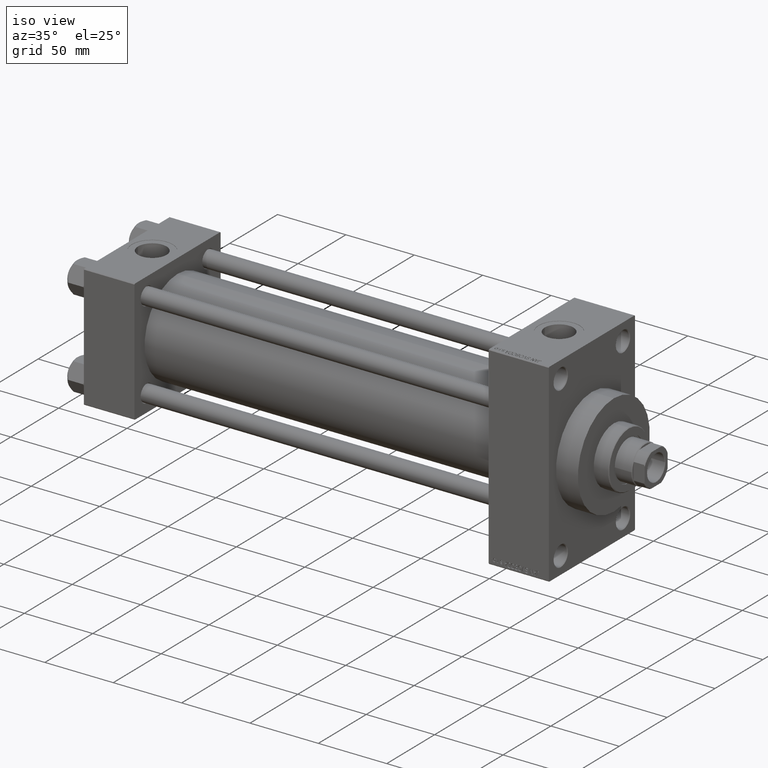
[diagram: clean part render]
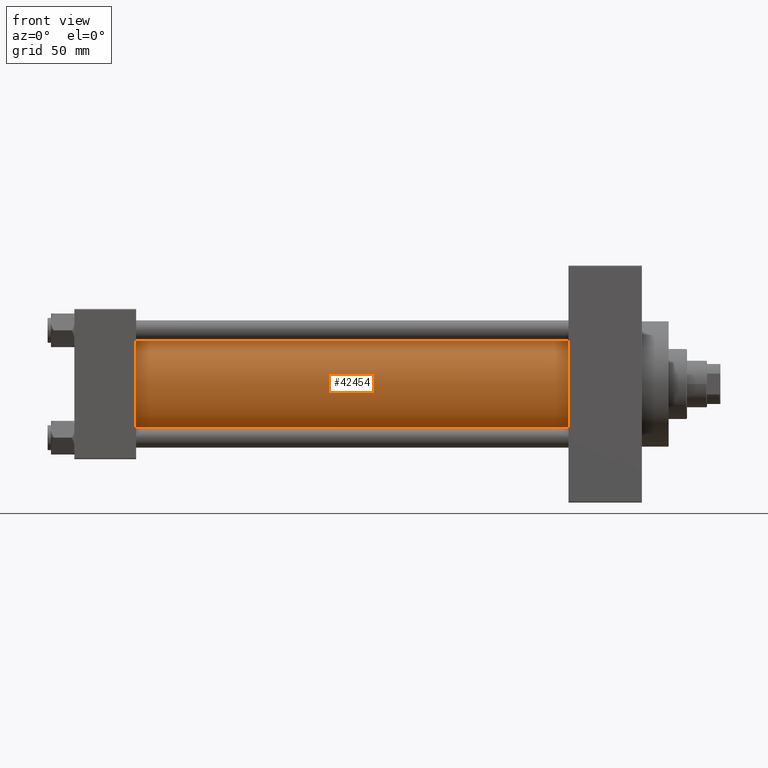
[diagram: tour spotlight — one face highlighted and labeled with its STEP entity id]
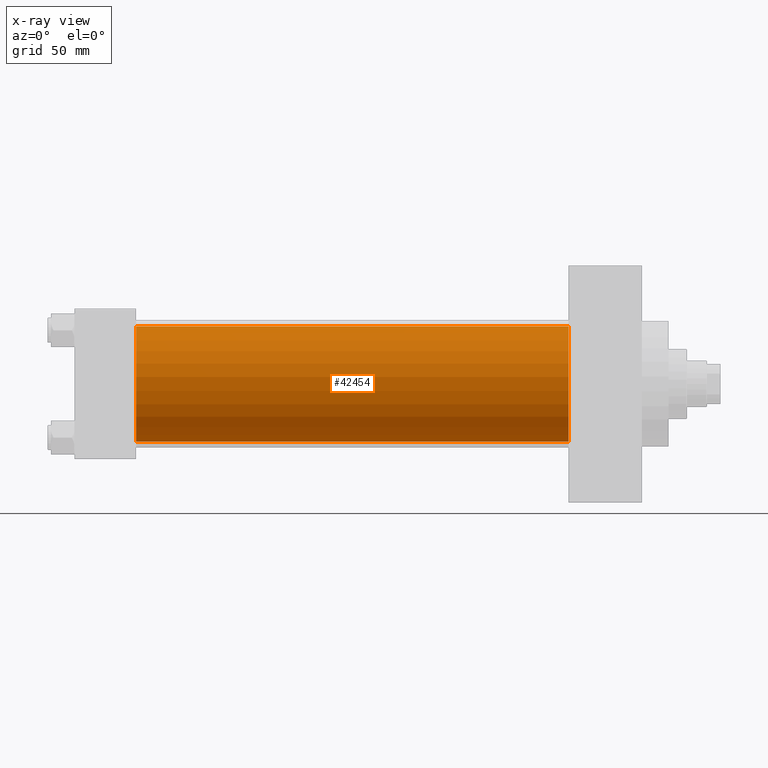
[diagram: x-ray of the same camera — body ghosted, this tour face saturated]
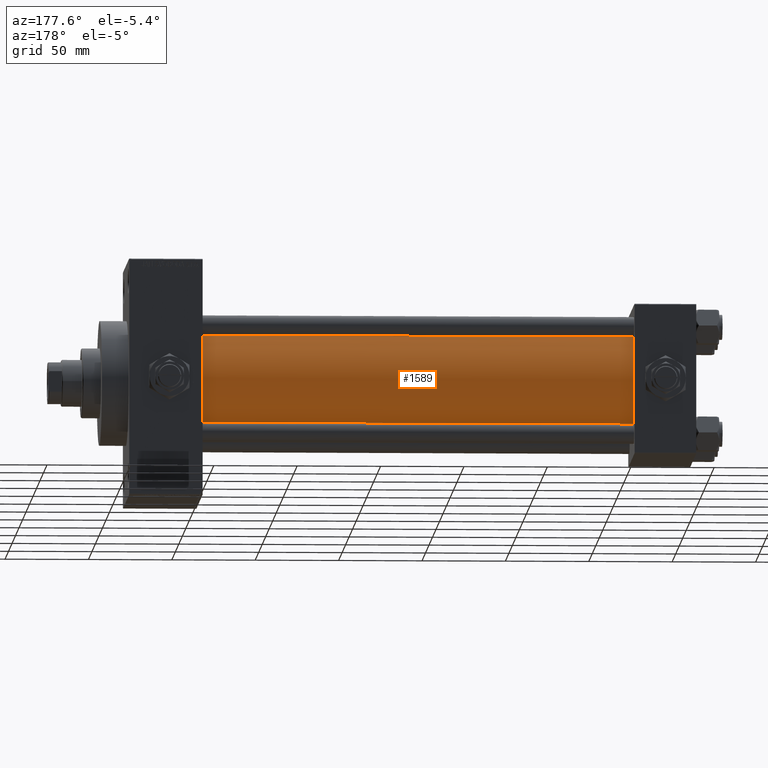
[diagram: tour spotlight — one face highlighted and labeled with its STEP entity id]
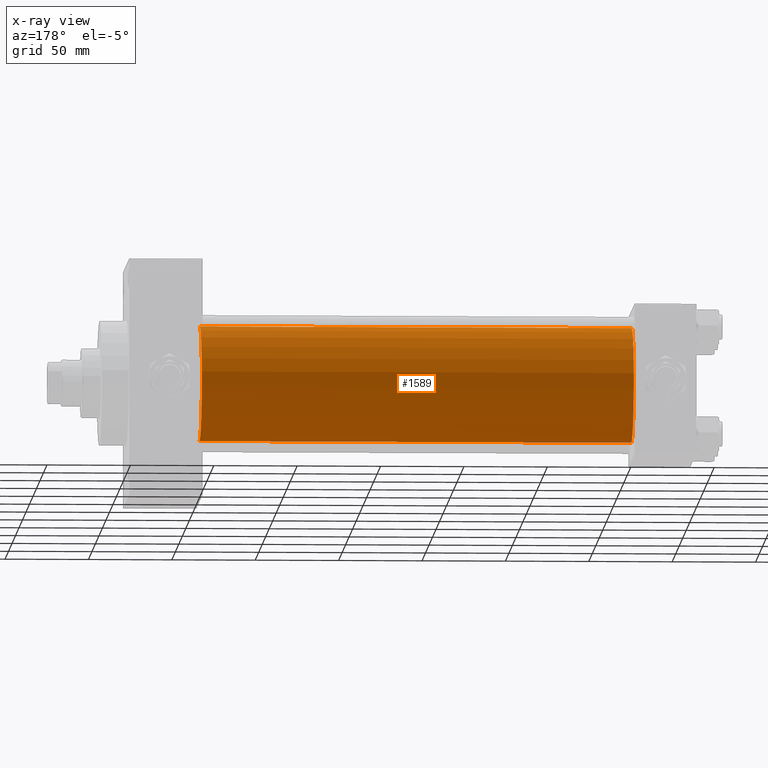
[diagram: x-ray of the same camera — body ghosted, this tour face saturated]
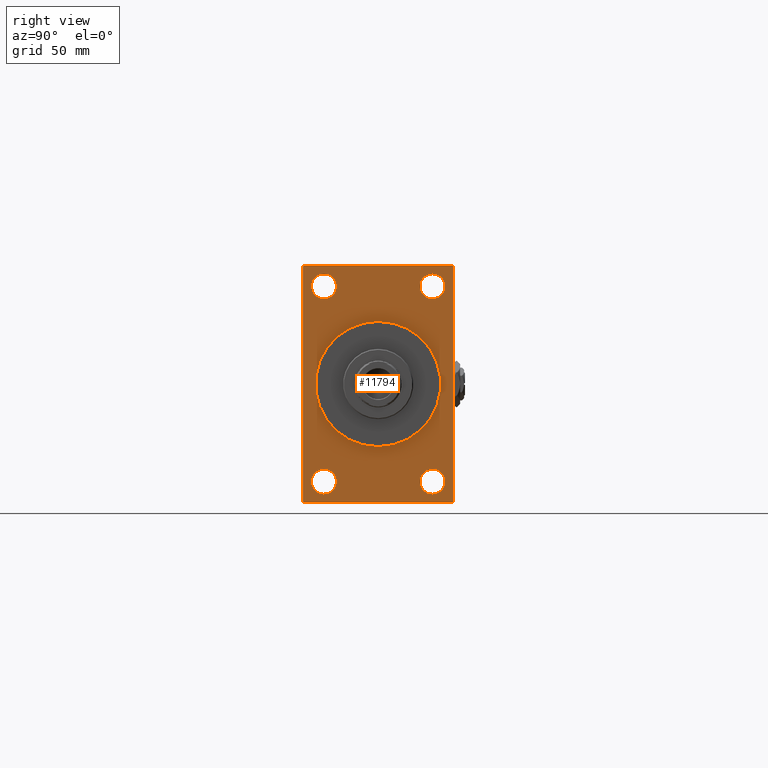
[diagram: tour spotlight — one face highlighted and labeled with its STEP entity id]
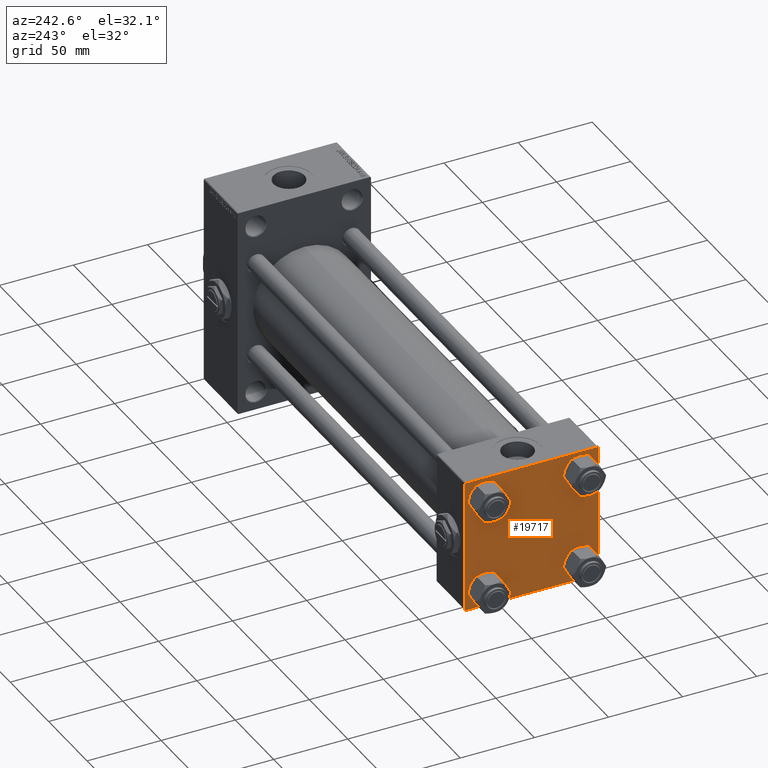
[diagram: tour spotlight — one face highlighted and labeled with its STEP entity id]
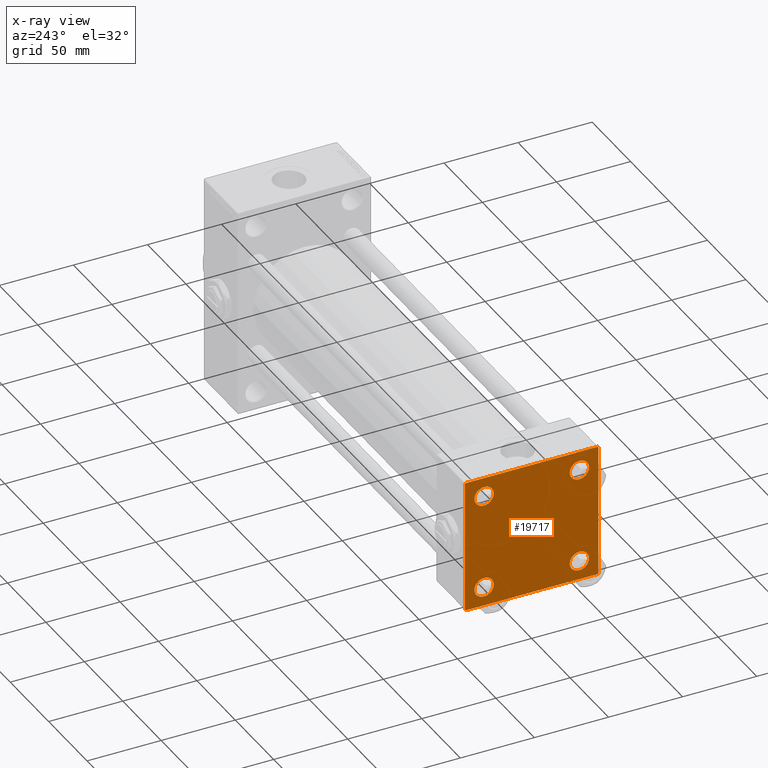
[diagram: x-ray of the same camera — body ghosted, this tour face saturated]
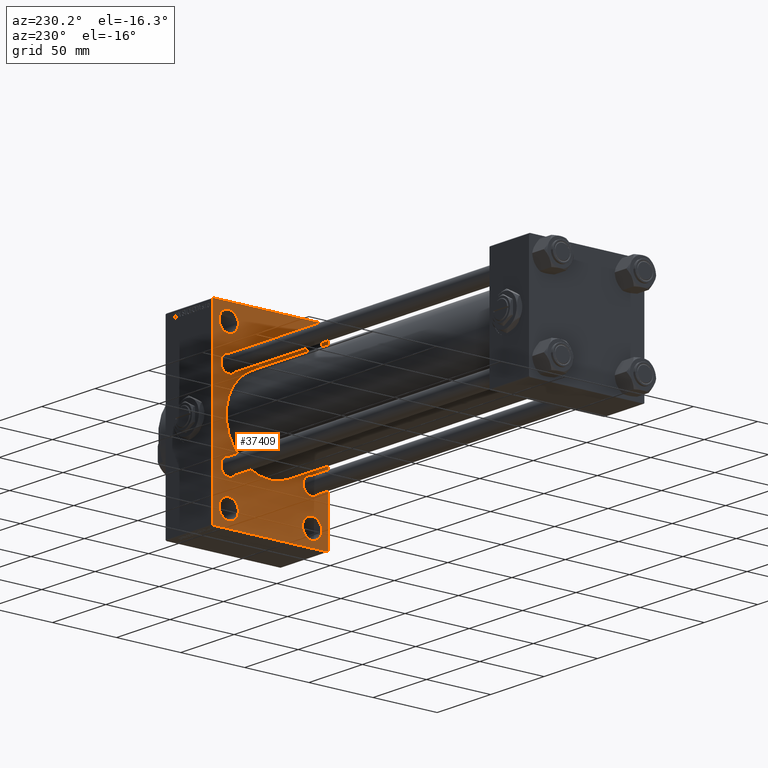
[diagram: tour spotlight — one face highlighted and labeled with its STEP entity id]
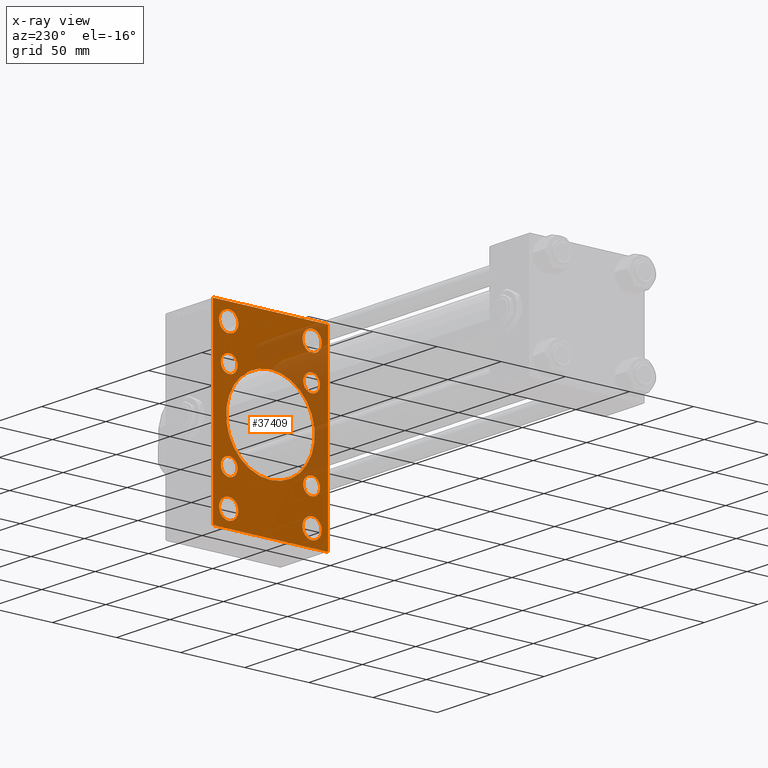
[diagram: x-ray of the same camera — body ghosted, this tour face saturated]
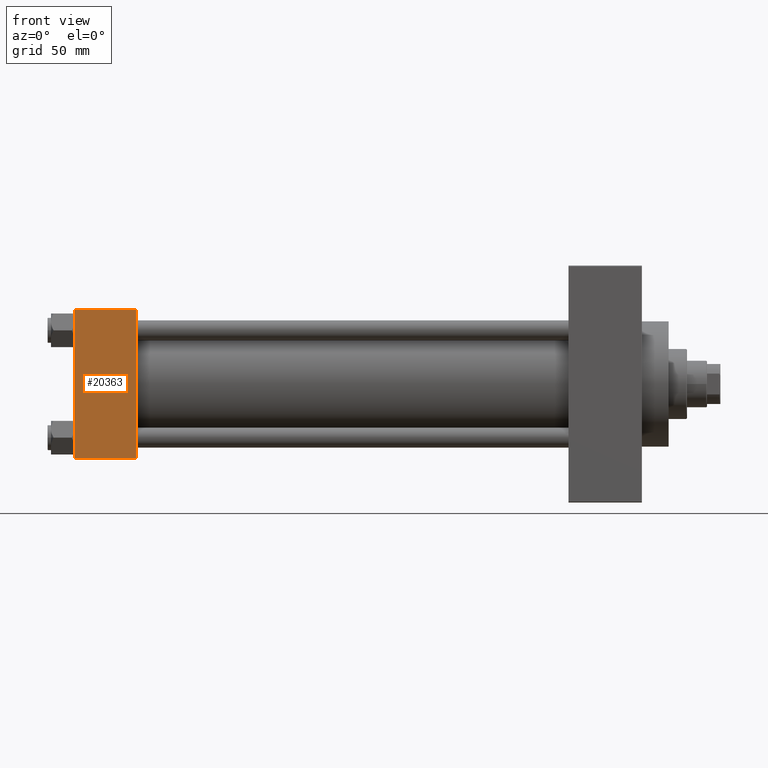
[diagram: tour spotlight — one face highlighted and labeled with its STEP entity id]
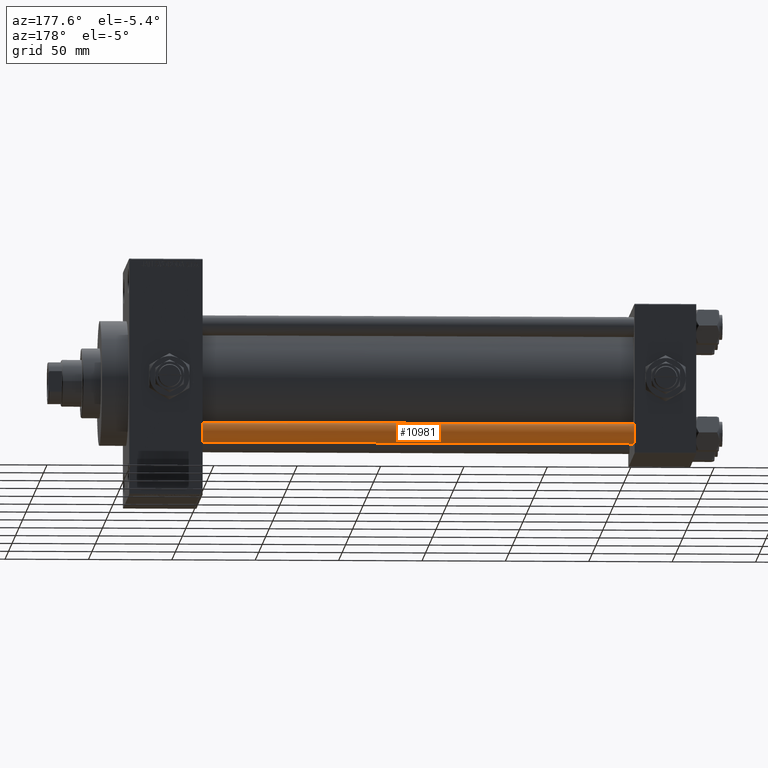
[diagram: tour spotlight — one face highlighted and labeled with its STEP entity id]
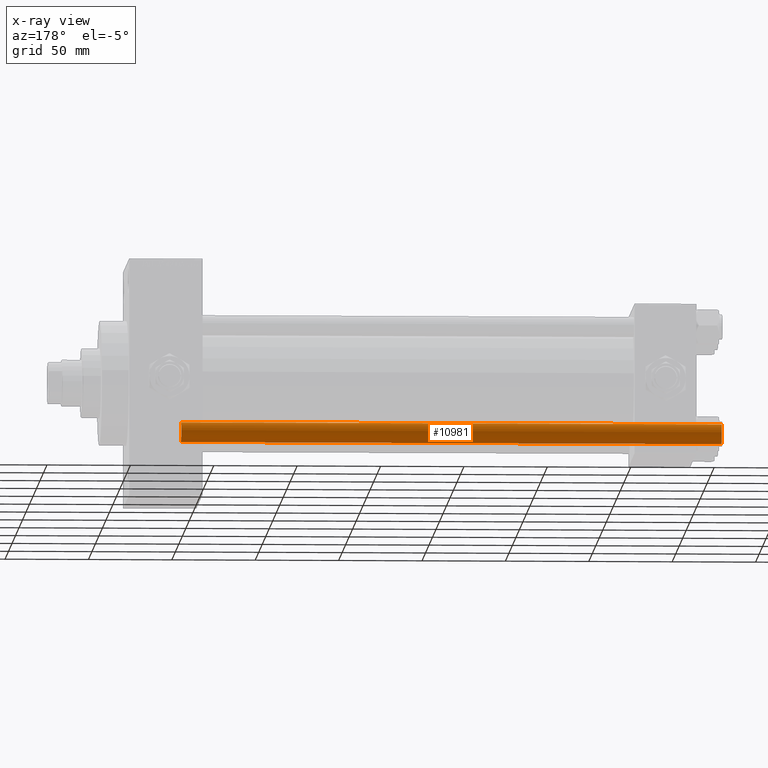
[diagram: x-ray of the same camera — body ghosted, this tour face saturated]
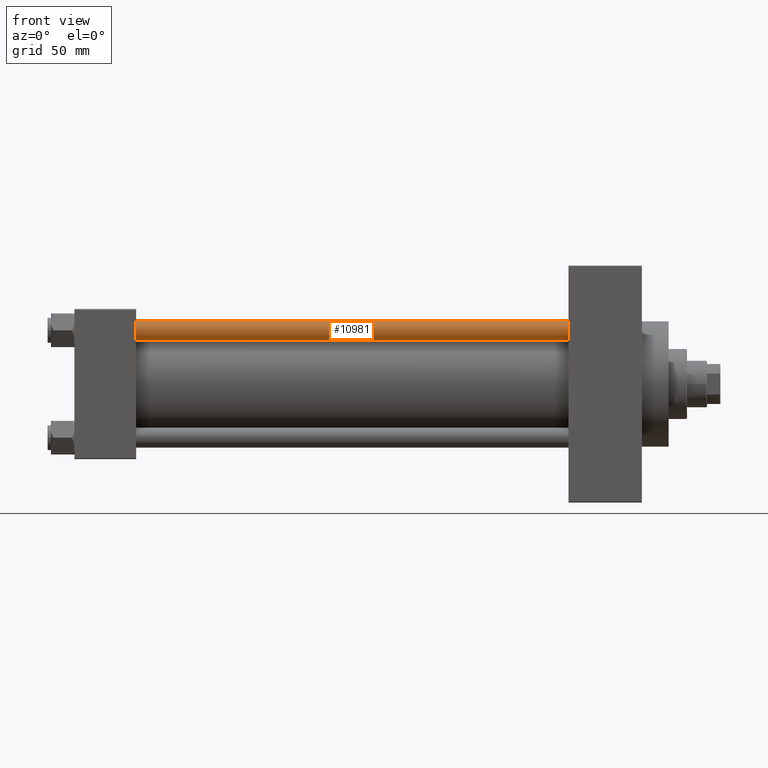
[diagram: tour spotlight — one face highlighted and labeled with its STEP entity id]
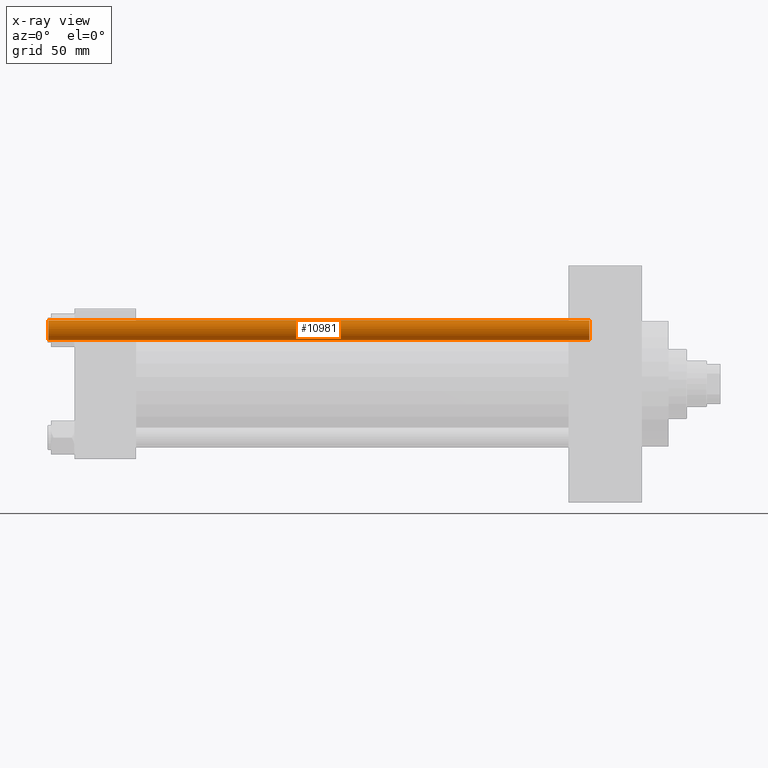
[diagram: x-ray of the same camera — body ghosted, this tour face saturated]
A machine part: a face-by-face anatomy tour. The part has 1204 B-rep faces; the first image is the clean iso view, then the 8 largest visible faces are spotlighted one at a time (largest first), each with its STEP entity span.

Face 1 — front view, entity #42454. An x-ray twin of the same camera follows (body ghosted, this face saturated) — the face is partly hidden behind the body. In plain terms, the highlighted cylindrical surface (partial cylindrical patch) has radius 34.5 mm, axis along (-1, -0, -0).
Definition (entity closure, byte-faithful):
#1242 = ORIENTED_EDGE ( 'NONE', *, *, #46792, .F. ) ;
#3855 = FACE_OUTER_BOUND ( 'NONE', #21824, .T. ) ;
#4754 = CARTESIAN_POINT ( 'NONE',  ( 296.0000000000000000, 1.622946243093158675E-15, -34.50000000000000000 ) ) ;
#5511 = EDGE_CURVE ( 'NONE', #47452, #44375, #10522, .T. ) ;
#6295 = DIRECTION ( 'NONE',  ( 1.000000000000000000, -0.000000000000000000, 0.000000000000000000 ) ) ;
#10522 = CIRCLE ( 'NONE', #20836, 34.50000000000000000 ) ;
#14296 = VERTEX_POINT ( 'NONE', #45674 ) ;
#15487 = DIRECTION ( 'NONE',  ( 1.000000000000000000, 0.000000000000000000, 0.000000000000000000 ) ) ;
#15981 = CARTESIAN_POINT ( 'NONE',  ( 296.0000000000000000, -2.602085213965210642E-15, 0.000000000000000000 ) ) ;
#16097 = AXIS2_PLACEMENT_3D ( 'NONE', #15981, #15487, #27206 ) ;
#20430 = DIRECTION ( 'NONE',  ( -1.000000000000000000, -0.000000000000000000, -0.000000000000000000 ) ) ;
#20836 = AXIS2_PLACEMENT_3D ( 'NONE', #24741, #6295, #21496 ) ;
#21496 = DIRECTION ( 'NONE',  ( 0.000000000000000000, 0.000000000000000000, 1.000000000000000000 ) ) ;
#21812 = CARTESIAN_POINT ( 'NONE',  ( 36.99999999999997868, -2.602085213965210642E-15, 34.50000000000000000 ) ) ;
#21824 = EDGE_LOOP ( 'NONE', ( #1242, #35488, #32106, #47756 ) ) ;
#23463 = EDGE_CURVE ( 'NONE', #14296, #26764, #37597, .T. ) ;
#24602 = CARTESIAN_POINT ( 'NONE',  ( 296.0000000000000000, 1.622946243093158675E-15, -34.50000000000000000 ) ) ;
#24741 = CARTESIAN_POINT ( 'NONE',  ( 36.99999999999997868, -2.602085213965210642E-15, 0.000000000000000000 ) ) ;
#26764 = VERTEX_POINT ( 'NONE', #24602 ) ;
#27034 = DIRECTION ( 'NONE',  ( 0.000000000000000000, 0.000000000000000000, 1.000000000000000000 ) ) ;
#27206 = DIRECTION ( 'NONE',  ( 0.000000000000000000, 0.000000000000000000, -1.000000000000000000 ) ) ;
#27534 = DIRECTION ( 'NONE',  ( -1.000000000000000000, -0.000000000000000000, -0.000000000000000000 ) ) ;
#28760 = CARTESIAN_POINT ( 'NONE',  ( 36.99999999999997868, 1.622946243093158675E-15, -34.50000000000000000 ) ) ;
#31751 = AXIS2_PLACEMENT_3D ( 'NONE', #41989, #27534, #27034 ) ;
#32106 = ORIENTED_EDGE ( 'NONE', *, *, #38253, .T. ) ;
#32559 = VECTOR ( 'NONE', #47378, 1000.000000000000000 ) ;
#35488 = ORIENTED_EDGE ( 'NONE', *, *, #23463, .F. ) ;
#37597 = CIRCLE ( 'NONE', #16097, 34.50000000000000000 ) ;
#37977 = VECTOR ( 'NONE', #20430, 1000.000000000000000 ) ;
#38253 = EDGE_CURVE ( 'NONE', #14296, #47452, #39625, .T. ) ;
#38988 = CYLINDRICAL_SURFACE ( 'NONE', #31751, 34.50000000000000000 ) ;
#39367 = CARTESIAN_POINT ( 'NONE',  ( 296.0000000000000000, -2.602085213965210642E-15, 34.50000000000000000 ) ) ;
#39625 = LINE ( 'NONE', #39367, #37977 ) ;
#41989 = CARTESIAN_POINT ( 'NONE',  ( 296.0000000000000000, -2.602085213965210642E-15, 0.000000000000000000 ) ) ;
#42454 = ADVANCED_FACE ( 'NONE', ( #3855 ), #38988, .T. ) ;
#44375 = VERTEX_POINT ( 'NONE', #28760 ) ;
#45674 = CARTESIAN_POINT ( 'NONE',  ( 296.0000000000000000, -2.602085213965210642E-15, 34.50000000000000000 ) ) ;
#46792 = EDGE_CURVE ( 'NONE', #26764, #44375, #47127, .T. ) ;
#47127 = LINE ( 'NONE', #4754, #32559 ) ;
#47378 = DIRECTION ( 'NONE',  ( -1.000000000000000000, -0.000000000000000000, -0.000000000000000000 ) ) ;
#47452 = VERTEX_POINT ( 'NONE', #21812 ) ;
#47756 = ORIENTED_EDGE ( 'NONE', *, *, #5511, .T. ) ;

Face 2 — auxiliary view, entity #1589. An x-ray twin of the same camera follows (body ghosted, this face saturated) — the face is partly hidden behind the body. In plain terms, the highlighted cylindrical surface (partial cylindrical patch) has radius 34.5 mm, axis along (-1, -0, -0).
Definition (entity closure, byte-faithful):
#1589 = ADVANCED_FACE ( 'NONE', ( #36694 ), #25226, .T. ) ;
#2106 = CIRCLE ( 'NONE', #18834, 34.50000000000000000 ) ;
#2510 = AXIS2_PLACEMENT_3D ( 'NONE', #10518, #2532, #48404 ) ;
#2532 = DIRECTION ( 'NONE',  ( -1.000000000000000000, -0.000000000000000000, -0.000000000000000000 ) ) ;
#4445 = DIRECTION ( 'NONE',  ( 1.000000000000000000, -0.000000000000000000, 0.000000000000000000 ) ) ;
#4754 = CARTESIAN_POINT ( 'NONE',  ( 296.0000000000000000, 1.622946243093158675E-15, -34.50000000000000000 ) ) ;
#8163 = EDGE_LOOP ( 'NONE', ( #34536, #42867, #32460, #22936 ) ) ;
#10518 = CARTESIAN_POINT ( 'NONE',  ( 296.0000000000000000, -2.602085213965210642E-15, 0.000000000000000000 ) ) ;
#14296 = VERTEX_POINT ( 'NONE', #45674 ) ;
#18834 = AXIS2_PLACEMENT_3D ( 'NONE', #46572, #4445, #23644 ) ;
#20430 = DIRECTION ( 'NONE',  ( -1.000000000000000000, -0.000000000000000000, -0.000000000000000000 ) ) ;
#21812 = CARTESIAN_POINT ( 'NONE',  ( 36.99999999999997868, -2.602085213965210642E-15, 34.50000000000000000 ) ) ;
#22936 = ORIENTED_EDGE ( 'NONE', *, *, #38253, .F. ) ;
#23644 = DIRECTION ( 'NONE',  ( 0.000000000000000000, 0.000000000000000000, 1.000000000000000000 ) ) ;
#24602 = CARTESIAN_POINT ( 'NONE',  ( 296.0000000000000000, 1.622946243093158675E-15, -34.50000000000000000 ) ) ;
#24635 = CIRCLE ( 'NONE', #35766, 34.50000000000000000 ) ;
#25226 = CYLINDRICAL_SURFACE ( 'NONE', #2510, 34.50000000000000000 ) ;
#26764 = VERTEX_POINT ( 'NONE', #24602 ) ;
#27844 = CARTESIAN_POINT ( 'NONE',  ( 296.0000000000000000, -2.602085213965210642E-15, 0.000000000000000000 ) ) ;
#28760 = CARTESIAN_POINT ( 'NONE',  ( 36.99999999999997868, 1.622946243093158675E-15, -34.50000000000000000 ) ) ;
#30844 = DIRECTION ( 'NONE',  ( 0.000000000000000000, 0.000000000000000000, -1.000000000000000000 ) ) ;
#31088 = DIRECTION ( 'NONE',  ( 1.000000000000000000, 0.000000000000000000, 0.000000000000000000 ) ) ;
#32460 = ORIENTED_EDGE ( 'NONE', *, *, #37267, .T. ) ;
#32559 = VECTOR ( 'NONE', #47378, 1000.000000000000000 ) ;
#34536 = ORIENTED_EDGE ( 'NONE', *, *, #42974, .F. ) ;
#35766 = AXIS2_PLACEMENT_3D ( 'NONE', #27844, #31088, #30844 ) ;
#36694 = FACE_OUTER_BOUND ( 'NONE', #8163, .T. ) ;
#37267 = EDGE_CURVE ( 'NONE', #44375, #47452, #2106, .T. ) ;
#37977 = VECTOR ( 'NONE', #20430, 1000.000000000000000 ) ;
#38253 = EDGE_CURVE ( 'NONE', #14296, #47452, #39625, .T. ) ;
#39367 = CARTESIAN_POINT ( 'NONE',  ( 296.0000000000000000, -2.602085213965210642E-15, 34.50000000000000000 ) ) ;
#39625 = LINE ( 'NONE', #39367, #37977 ) ;
#42867 = ORIENTED_EDGE ( 'NONE', *, *, #46792, .T. ) ;
#42974 = EDGE_CURVE ( 'NONE', #26764, #14296, #24635, .T. ) ;
#44375 = VERTEX_POINT ( 'NONE', #28760 ) ;
#45674 = CARTESIAN_POINT ( 'NONE',  ( 296.0000000000000000, -2.602085213965210642E-15, 34.50000000000000000 ) ) ;
#46572 = CARTESIAN_POINT ( 'NONE',  ( 36.99999999999997868, -2.602085213965210642E-15, 0.000000000000000000 ) ) ;
#46792 = EDGE_CURVE ( 'NONE', #26764, #44375, #47127, .T. ) ;
#47127 = LINE ( 'NONE', #4754, #32559 ) ;
#47378 = DIRECTION ( 'NONE',  ( -1.000000000000000000, -0.000000000000000000, -0.000000000000000000 ) ) ;
#47452 = VERTEX_POINT ( 'NONE', #21812 ) ;
#48404 = DIRECTION ( 'NONE',  ( 0.000000000000000000, 0.000000000000000000, 1.000000000000000000 ) ) ;

Face 3 — right view, entity #11794. In plain terms, the highlighted planar face has unit normal (-1, 0, 0).
Definition (entity closure, byte-faithful):
#251 = DIRECTION ( 'NONE',  ( 0.000000000000000000, 0.000000000000000000, 1.000000000000000000 ) ) ;
#315 = EDGE_CURVE ( 'NONE', #7196, #31116, #16776, .T. ) ;
#431 = CIRCLE ( 'NONE', #33074, 37.50000000000000711 ) ;
#435 = DIRECTION ( 'NONE',  ( 0.000000000000000000, 0.000000000000000000, 1.000000000000000000 ) ) ;
#535 = DIRECTION ( 'NONE',  ( -1.000000000000000000, 0.000000000000000000, -0.000000000000000000 ) ) ;
#817 = CARTESIAN_POINT ( 'NONE',  ( 339.9999999999999432, -44.49999999999989342, 70.99999999999998579 ) ) ;
#896 = VERTEX_POINT ( 'NONE', #5653 ) ;
#1026 = DIRECTION ( 'NONE',  ( 0.000000000000000000, 0.000000000000000000, 1.000000000000000000 ) ) ;
#1291 = DIRECTION ( 'NONE',  ( 0.000000000000000000, 0.000000000000000000, -1.000000000000000000 ) ) ;
#1520 = CARTESIAN_POINT ( 'NONE',  ( 339.9999999999999432, 45.00000000000001421, -70.49999999999997158 ) ) ;
#1571 = ORIENTED_EDGE ( 'NONE', *, *, #46654, .T. ) ;
#2647 = VECTOR ( 'NONE', #16871, 1000.000000000000000 ) ;
#2808 = DIRECTION ( 'NONE',  ( 0.000000000000000000, -1.000000000000000000, -1.541976423090495633E-16 ) ) ;
#3023 = CARTESIAN_POINT ( 'NONE',  ( 339.9999999999999432, -32.50000000000000000, -58.49999999999999289 ) ) ;
#3234 = DIRECTION ( 'NONE',  ( 1.000000000000000000, 0.000000000000000000, 0.000000000000000000 ) ) ;
#3261 = VERTEX_POINT ( 'NONE', #21346 ) ;
#3375 = DIRECTION ( 'NONE',  ( -1.000000000000000000, 0.000000000000000000, -0.000000000000000000 ) ) ;
#3674 = CARTESIAN_POINT ( 'NONE',  ( 339.9999999999999432, -44.99999999999997158, -70.50000000000000000 ) ) ;
#3687 = CARTESIAN_POINT ( 'NONE',  ( 339.9999999999999432, 32.50000000000000711, -58.50000000000000000 ) ) ;
#3956 = DIRECTION ( 'NONE',  ( 0.000000000000000000, 0.000000000000000000, -1.000000000000000000 ) ) ;
#4391 = ORIENTED_EDGE ( 'NONE', *, *, #23961, .T. ) ;
#4717 = CARTESIAN_POINT ( 'NONE',  ( 339.9999999999999432, 45.00000000000002132, 71.00000000000000000 ) ) ;
#4911 = VERTEX_POINT ( 'NONE', #47658 ) ;
#5279 = CARTESIAN_POINT ( 'NONE',  ( 339.9999999999999432, 32.50000000000000711, 58.50000000000000711 ) ) ;
#5280 = VECTOR ( 'NONE', #38323, 1000.000000000000000 ) ;
#5653 = CARTESIAN_POINT ( 'NONE',  ( 339.9999999999999432, 32.50000000000000711, 66.00000000000017053 ) ) ;
#5858 = ORIENTED_EDGE ( 'NONE', *, *, #15996, .T. ) ;
#6201 = ORIENTED_EDGE ( 'NONE', *, *, #35364, .T. ) ;
#6411 = CARTESIAN_POINT ( 'NONE',  ( 339.9999999999999432, 44.50000000000006395, -70.99999999999998579 ) ) ;
#6779 = VECTOR ( 'NONE', #19132, 1000.000000000000000 ) ;
#6985 = EDGE_CURVE ( 'NONE', #42500, #4911, #31217, .T. ) ;
#7196 = VERTEX_POINT ( 'NONE', #25258 ) ;
#7436 = VERTEX_POINT ( 'NONE', #1520 ) ;
#7631 = EDGE_LOOP ( 'NONE', ( #22802, #1571 ) ) ;
#7632 = AXIS2_PLACEMENT_3D ( 'NONE', #41924, #535, #30953 ) ;
#7679 = LINE ( 'NONE', #38575, #6779 ) ;
#7929 = VERTEX_POINT ( 'NONE', #20281 ) ;
#9484 = VERTEX_POINT ( 'NONE', #3674 ) ;
#9637 = CARTESIAN_POINT ( 'NONE',  ( 339.9999999999999432, -44.99999999999997158, 70.99999999999998579 ) ) ;
#10727 = DIRECTION ( 'NONE',  ( -1.000000000000000000, 0.000000000000000000, -0.000000000000000000 ) ) ;
#10891 = ORIENTED_EDGE ( 'NONE', *, *, #26726, .T. ) ;
#11334 = EDGE_LOOP ( 'NONE', ( #6201, #24582 ) ) ;
#11794 = ADVANCED_FACE ( 'NONE', ( #22778, #26042, #48467, #25792, #26276, #14317 ), #22289, .F. ) ;
#12219 = ORIENTED_EDGE ( 'NONE', *, *, #315, .F. ) ;
#12343 = ORIENTED_EDGE ( 'NONE', *, *, #43508, .T. ) ;
#12383 = ORIENTED_EDGE ( 'NONE', *, *, #43712, .F. ) ;
#12513 = DIRECTION ( 'NONE',  ( -1.000000000000000000, 0.000000000000000000, -0.000000000000000000 ) ) ;
#12974 = CARTESIAN_POINT ( 'NONE',  ( 339.9999999999999432, -32.50000000000000000, -58.49999999999999289 ) ) ;
#13256 = EDGE_CURVE ( 'NONE', #17401, #27773, #41778, .T. ) ;
#13416 = CIRCLE ( 'NONE', #34118, 7.500000000000180300 ) ;
#14317 = FACE_OUTER_BOUND ( 'NONE', #44662, .T. ) ;
#14535 = DIRECTION ( 'NONE',  ( 0.000000000000000000, -1.000000000000000000, -1.541976423090495387E-16 ) ) ;
#14710 = AXIS2_PLACEMENT_3D ( 'NONE', #29529, #33018, #48961 ) ;
#15123 = VERTEX_POINT ( 'NONE', #18341 ) ;
#15996 = EDGE_CURVE ( 'NONE', #15123, #31407, #7679, .T. ) ;
#16009 = EDGE_CURVE ( 'NONE', #4911, #42500, #45000, .T. ) ;
#16424 = LINE ( 'NONE', #36097, #32826 ) ;
#16776 = CIRCLE ( 'NONE', #44652, 37.50000000000000711 ) ;
#16871 = DIRECTION ( 'NONE',  ( 0.000000000000000000, 0.000000000000000000, -1.000000000000000000 ) ) ;
#17334 = CARTESIAN_POINT ( 'NONE',  ( 339.9999999999999432, -32.50000000000000000, -66.00000000000015632 ) ) ;
#17401 = VERTEX_POINT ( 'NONE', #17334 ) ;
#17728 = ORIENTED_EDGE ( 'NONE', *, *, #45525, .T. ) ;
#18238 = DIRECTION ( 'NONE',  ( -1.000000000000000000, 0.000000000000000000, -0.000000000000000000 ) ) ;
#18341 = CARTESIAN_POINT ( 'NONE',  ( 339.9999999999999432, 45.00000000000002132, 70.50000000000000000 ) ) ;
#18584 = DIRECTION ( 'NONE',  ( 0.000000000000000000, 0.000000000000000000, 1.000000000000000000 ) ) ;
#19132 = DIRECTION ( 'NONE',  ( 0.000000000000000000, -0.7071067811865867636, 0.7071067811865081598 ) ) ;
#19505 = CARTESIAN_POINT ( 'NONE',  ( 339.9999999999999432, 0.000000000000000000, 0.000000000000000000 ) ) ;
#19648 = AXIS2_PLACEMENT_3D ( 'NONE', #5279, #12513, #1026 ) ;
#20281 = CARTESIAN_POINT ( 'NONE',  ( 339.9999999999999432, 32.50000000000000711, 50.99999999999985079 ) ) ;
#20754 = DIRECTION ( 'NONE',  ( -1.000000000000000000, 0.000000000000000000, -0.000000000000000000 ) ) ;
#21151 = DIRECTION ( 'NONE',  ( 0.000000000000000000, 0.7071067811865573427, -0.7071067811865378028 ) ) ;
#21200 = CARTESIAN_POINT ( 'NONE',  ( 339.9999999999999432, 0.000000000000000000, 37.50000000000000711 ) ) ;
#21323 = EDGE_CURVE ( 'NONE', #33918, #3261, #21747, .T. ) ;
#21346 = CARTESIAN_POINT ( 'NONE',  ( 339.9999999999999432, -44.49999999999994316, -71.00000000000000000 ) ) ;
#21747 = LINE ( 'NONE', #36962, #46275 ) ;
#22289 = PLANE ( 'NONE',  #14710 ) ;
#22778 = FACE_BOUND ( 'NONE', #7631, .T. ) ;
#22802 = ORIENTED_EDGE ( 'NONE', *, *, #26893, .T. ) ;
#22906 = CARTESIAN_POINT ( 'NONE',  ( 339.9999999999999432, 0.000000000000000000, 0.000000000000000000 ) ) ;
#23913 = DIRECTION ( 'NONE',  ( 0.000000000000000000, -4.886545002751570165E-17, -1.000000000000000000 ) ) ;
#23961 = EDGE_CURVE ( 'NONE', #9484, #3261, #16424, .T. ) ;
#23981 = ORIENTED_EDGE ( 'NONE', *, *, #35594, .T. ) ;
#24582 = ORIENTED_EDGE ( 'NONE', *, *, #38038, .T. ) ;
#24603 = EDGE_LOOP ( 'NONE', ( #27536, #27224 ) ) ;
#25070 = VECTOR ( 'NONE', #26713, 1000.000000000000114 ) ;
#25245 = CIRCLE ( 'NONE', #19648, 7.500000000000158984 ) ;
#25258 = CARTESIAN_POINT ( 'NONE',  ( 339.9999999999999432, 4.592425496802575156E-15, -37.50000000000000711 ) ) ;
#25680 = AXIS2_PLACEMENT_3D ( 'NONE', #42226, #30042, #37757 ) ;
#25792 = FACE_BOUND ( 'NONE', #11334, .T. ) ;
#26042 = FACE_BOUND ( 'NONE', #31908, .T. ) ;
#26276 = FACE_BOUND ( 'NONE', #27912, .T. ) ;
#26713 = DIRECTION ( 'NONE',  ( -0.000000000000000000, 0.7071067811864985009, 0.7071067811865965336 ) ) ;
#26726 = EDGE_CURVE ( 'NONE', #37184, #9484, #31335, .T. ) ;
#26865 = LINE ( 'NONE', #42063, #5280 ) ;
#26893 = EDGE_CURVE ( 'NONE', #34148, #44510, #32932, .T. ) ;
#26991 = DIRECTION ( 'NONE',  ( 1.000000000000000000, 0.000000000000000000, 0.000000000000000000 ) ) ;
#27224 = ORIENTED_EDGE ( 'NONE', *, *, #6985, .T. ) ;
#27536 = ORIENTED_EDGE ( 'NONE', *, *, #16009, .T. ) ;
#27773 = VERTEX_POINT ( 'NONE', #38651 ) ;
#27912 = EDGE_LOOP ( 'NONE', ( #48302, #12219 ) ) ;
#29078 = CARTESIAN_POINT ( 'NONE',  ( 339.9999999999999432, -32.50000000000000000, 58.50000000000000711 ) ) ;
#29134 = CIRCLE ( 'NONE', #7632, 7.500000000000158984 ) ;
#29529 = CARTESIAN_POINT ( 'NONE',  ( 339.9999999999999432, 0.000000000000000000, 0.000000000000000000 ) ) ;
#29644 = EDGE_CURVE ( 'NONE', #33918, #7436, #41418, .T. ) ;
#30042 = DIRECTION ( 'NONE',  ( -1.000000000000000000, 0.000000000000000000, -0.000000000000000000 ) ) ;
#30849 = DIRECTION ( 'NONE',  ( -1.000000000000000000, 0.000000000000000000, -0.000000000000000000 ) ) ;
#30953 = DIRECTION ( 'NONE',  ( 0.000000000000000000, 0.000000000000000000, 1.000000000000000000 ) ) ;
#31116 = VERTEX_POINT ( 'NONE', #21200 ) ;
#31217 = CIRCLE ( 'NONE', #25680, 7.500000000000173195 ) ;
#31335 = LINE ( 'NONE', #9637, #2647 ) ;
#31407 = VERTEX_POINT ( 'NONE', #39838 ) ;
#31908 = EDGE_LOOP ( 'NONE', ( #48552, #17728 ) ) ;
#31978 = CARTESIAN_POINT ( 'NONE',  ( 339.9999999999999432, -32.50000000000000000, 58.50000000000000711 ) ) ;
#32474 = DIRECTION ( 'NONE',  ( 0.000000000000000000, 0.000000000000000000, 1.000000000000000000 ) ) ;
#32826 = VECTOR ( 'NONE', #21151, 1000.000000000000000 ) ;
#32932 = CIRCLE ( 'NONE', #48839, 7.500000000000158984 ) ;
#33018 = DIRECTION ( 'NONE',  ( -1.000000000000000000, 0.000000000000000000, -0.000000000000000000 ) ) ;
#33074 = AXIS2_PLACEMENT_3D ( 'NONE', #22906, #3234, #3956 ) ;
#33813 = AXIS2_PLACEMENT_3D ( 'NONE', #3687, #30849, #435 ) ;
#33918 = VERTEX_POINT ( 'NONE', #6411 ) ;
#34118 = AXIS2_PLACEMENT_3D ( 'NONE', #3023, #18238, #251 ) ;
#34148 = VERTEX_POINT ( 'NONE', #44989 ) ;
#34176 = CARTESIAN_POINT ( 'NONE',  ( 339.9999999999999432, 45.00000000000001421, -70.49999999999997158 ) ) ;
#34647 = ORIENTED_EDGE ( 'NONE', *, *, #29644, .T. ) ;
#34706 = EDGE_CURVE ( 'NONE', #31116, #7196, #431, .T. ) ;
#35364 = EDGE_CURVE ( 'NONE', #7929, #896, #29134, .T. ) ;
#35594 = EDGE_CURVE ( 'NONE', #46489, #37184, #26865, .T. ) ;
#36097 = CARTESIAN_POINT ( 'NONE',  ( 339.9999999999999432, -44.49999999999997158, -71.00000000000000000 ) ) ;
#36962 = CARTESIAN_POINT ( 'NONE',  ( 339.9999999999999432, 45.00000000000001421, -70.99999999999998579 ) ) ;
#37184 = VERTEX_POINT ( 'NONE', #46071 ) ;
#37478 = CARTESIAN_POINT ( 'NONE',  ( 339.9999999999999432, 45.00000000000002132, 71.00000000000000000 ) ) ;
#37757 = DIRECTION ( 'NONE',  ( 0.000000000000000000, 0.000000000000000000, 1.000000000000000000 ) ) ;
#38038 = EDGE_CURVE ( 'NONE', #896, #7929, #25245, .T. ) ;
#38146 = VECTOR ( 'NONE', #23913, 1000.000000000000000 ) ;
#38323 = DIRECTION ( 'NONE',  ( -0.000000000000000000, -0.7071067811865426878, -0.7071067811865524577 ) ) ;
#38575 = CARTESIAN_POINT ( 'NONE',  ( 339.9999999999999432, 44.49999999999996447, 71.00000000000000000 ) ) ;
#38651 = CARTESIAN_POINT ( 'NONE',  ( 339.9999999999999432, -32.50000000000000000, -50.99999999999981526 ) ) ;
#39838 = CARTESIAN_POINT ( 'NONE',  ( 339.9999999999999432, 44.49999999999996447, 71.00000000000000000 ) ) ;
#41370 = DIRECTION ( 'NONE',  ( 0.000000000000000000, 0.000000000000000000, 1.000000000000000000 ) ) ;
#41418 = LINE ( 'NONE', #34176, #25070 ) ;
#41778 = CIRCLE ( 'NONE', #46597, 7.500000000000180300 ) ;
#41924 = CARTESIAN_POINT ( 'NONE',  ( 339.9999999999999432, 32.50000000000000711, 58.50000000000000711 ) ) ;
#42063 = CARTESIAN_POINT ( 'NONE',  ( 339.9999999999999432, -44.99999999999997158, 70.49999999999992895 ) ) ;
#42128 = VECTOR ( 'NONE', #14535, 1000.000000000000000 ) ;
#42226 = CARTESIAN_POINT ( 'NONE',  ( 339.9999999999999432, 32.50000000000000711, -58.50000000000000000 ) ) ;
#42500 = VERTEX_POINT ( 'NONE', #46722 ) ;
#42839 = ORIENTED_EDGE ( 'NONE', *, *, #21323, .F. ) ;
#43508 = EDGE_CURVE ( 'NONE', #31407, #46489, #48941, .T. ) ;
#43707 = AXIS2_PLACEMENT_3D ( 'NONE', #31978, #20754, #32474 ) ;
#43712 = EDGE_CURVE ( 'NONE', #15123, #7436, #46346, .T. ) ;
#44510 = VERTEX_POINT ( 'NONE', #44713 ) ;
#44652 = AXIS2_PLACEMENT_3D ( 'NONE', #19505, #26991, #1291 ) ;
#44662 = EDGE_LOOP ( 'NONE', ( #10891, #4391, #42839, #34647, #12383, #5858, #12343, #23981 ) ) ;
#44713 = CARTESIAN_POINT ( 'NONE',  ( 339.9999999999999432, -32.50000000000000000, 66.00000000000017053 ) ) ;
#44989 = CARTESIAN_POINT ( 'NONE',  ( 339.9999999999999432, -32.50000000000000000, 50.99999999999985079 ) ) ;
#45000 = CIRCLE ( 'NONE', #33813, 7.500000000000173195 ) ;
#45525 = EDGE_CURVE ( 'NONE', #27773, #17401, #13416, .T. ) ;
#46071 = CARTESIAN_POINT ( 'NONE',  ( 339.9999999999999432, -44.99999999999997158, 70.49999999999992895 ) ) ;
#46275 = VECTOR ( 'NONE', #2808, 1000.000000000000000 ) ;
#46346 = LINE ( 'NONE', #4717, #38146 ) ;
#46489 = VERTEX_POINT ( 'NONE', #817 ) ;
#46597 = AXIS2_PLACEMENT_3D ( 'NONE', #12974, #10727, #41370 ) ;
#46654 = EDGE_CURVE ( 'NONE', #44510, #34148, #49277, .T. ) ;
#46722 = CARTESIAN_POINT ( 'NONE',  ( 339.9999999999999432, 32.50000000000000711, -50.99999999999982236 ) ) ;
#47658 = CARTESIAN_POINT ( 'NONE',  ( 339.9999999999999432, 32.50000000000000711, -66.00000000000017053 ) ) ;
#48302 = ORIENTED_EDGE ( 'NONE', *, *, #34706, .F. ) ;
#48467 = FACE_BOUND ( 'NONE', #24603, .T. ) ;
#48552 = ORIENTED_EDGE ( 'NONE', *, *, #13256, .T. ) ;
#48839 = AXIS2_PLACEMENT_3D ( 'NONE', #29078, #3375, #18584 ) ;
#48941 = LINE ( 'NONE', #37478, #42128 ) ;
#48961 = DIRECTION ( 'NONE',  ( -0.000000000000000000, 0.000000000000000000, 1.000000000000000000 ) ) ;
#49277 = CIRCLE ( 'NONE', #43707, 7.500000000000158984 ) ;

Face 4 — auxiliary view, entity #19717. An x-ray twin of the same camera follows (body ghosted, this face saturated) — the face is partly hidden behind the body. In plain terms, the highlighted planar face has unit normal (-1, 0, 0).
Definition (entity closure, byte-faithful):
#626 = CARTESIAN_POINT ( 'NONE',  ( 0.000000000000000000, 32.14999999999999147, 32.15000000000000568 ) ) ;
#1183 = VERTEX_POINT ( 'NONE', #16816 ) ;
#1552 = CARTESIAN_POINT ( 'NONE',  ( 0.000000000000000000, 32.14999999999999147, -25.65000000000002700 ) ) ;
#1652 = AXIS2_PLACEMENT_3D ( 'NONE', #1917, #16647, #31849 ) ;
#1678 = FACE_BOUND ( 'NONE', #3660, .T. ) ;
#1917 = CARTESIAN_POINT ( 'NONE',  ( 0.000000000000000000, 0.000000000000000000, 0.000000000000000000 ) ) ;
#2630 = CARTESIAN_POINT ( 'NONE',  ( 0.000000000000000000, 32.14999999999999147, -38.64999999999998437 ) ) ;
#3343 = CARTESIAN_POINT ( 'NONE',  ( 0.000000000000000000, -32.14999999999997726, 25.64999999999999147 ) ) ;
#3506 = ORIENTED_EDGE ( 'NONE', *, *, #30162, .T. ) ;
#3515 = LINE ( 'NONE', #7512, #35413 ) ;
#3558 = CIRCLE ( 'NONE', #9936, 6.499999999999977796 ) ;
#3660 = EDGE_LOOP ( 'NONE', ( #14449, #3506 ) ) ;
#4578 = EDGE_CURVE ( 'NONE', #29692, #46515, #35760, .T. ) ;
#5176 = FACE_BOUND ( 'NONE', #11392, .T. ) ;
#5231 = VERTEX_POINT ( 'NONE', #9043 ) ;
#5662 = FACE_BOUND ( 'NONE', #44566, .T. ) ;
#6249 = VERTEX_POINT ( 'NONE', #41489 ) ;
#6716 = AXIS2_PLACEMENT_3D ( 'NONE', #32159, #46371, #12716 ) ;
#7512 = CARTESIAN_POINT ( 'NONE',  ( 0.000000000000000000, 44.74999999999998579, -44.74999999999998579 ) ) ;
#7804 = VECTOR ( 'NONE', #21122, 1000.000000000000000 ) ;
#7968 = EDGE_CURVE ( 'NONE', #30944, #39542, #20533, .T. ) ;
#8354 = DIRECTION ( 'NONE',  ( 0.000000000000000000, 0.7071067811865474617, -0.7071067811865474617 ) ) ;
#8391 = EDGE_CURVE ( 'NONE', #1183, #39542, #21699, .T. ) ;
#8623 = DIRECTION ( 'NONE',  ( 0.000000000000000000, 0.000000000000000000, 1.000000000000000000 ) ) ;
#8907 = LINE ( 'NONE', #32088, #7804 ) ;
#8973 = VERTEX_POINT ( 'NONE', #2630 ) ;
#9043 = CARTESIAN_POINT ( 'NONE',  ( 0.000000000000000000, 44.49999999999998579, -44.99999999999998579 ) ) ;
#9257 = VERTEX_POINT ( 'NONE', #36667 ) ;
#9282 = CARTESIAN_POINT ( 'NONE',  ( 0.000000000000000000, -32.14999999999997726, 38.65000000000003411 ) ) ;
#9652 = FACE_OUTER_BOUND ( 'NONE', #27964, .T. ) ;
#9936 = AXIS2_PLACEMENT_3D ( 'NONE', #626, #31042, #46244 ) ;
#9952 = CARTESIAN_POINT ( 'NONE',  ( 0.000000000000000000, -45.00000000000000000, -44.49999999999995737 ) ) ;
#10376 = DIRECTION ( 'NONE',  ( 1.000000000000000000, -0.000000000000000000, 0.000000000000000000 ) ) ;
#10400 = ORIENTED_EDGE ( 'NONE', *, *, #35532, .T. ) ;
#11392 = EDGE_LOOP ( 'NONE', ( #10400, #45622 ) ) ;
#11440 = CIRCLE ( 'NONE', #48053, 6.499999999999977796 ) ;
#11547 = CIRCLE ( 'NONE', #24287, 6.499999999999977796 ) ;
#12049 = CARTESIAN_POINT ( 'NONE',  ( 0.000000000000000000, 44.99999999999998579, 45.00000000000001421 ) ) ;
#12380 = EDGE_CURVE ( 'NONE', #29077, #6249, #44960, .T. ) ;
#12716 = DIRECTION ( 'NONE',  ( 0.000000000000000000, 0.000000000000000000, 1.000000000000000000 ) ) ;
#13615 = CARTESIAN_POINT ( 'NONE',  ( 0.000000000000000000, 32.14999999999999147, -32.15000000000000568 ) ) ;
#14114 = CIRCLE ( 'NONE', #34036, 6.500000000000019540 ) ;
#14121 = EDGE_CURVE ( 'NONE', #30944, #23931, #47459, .T. ) ;
#14436 = CARTESIAN_POINT ( 'NONE',  ( 0.000000000000000000, 32.14999999999999147, 25.65000000000002700 ) ) ;
#14449 = ORIENTED_EDGE ( 'NONE', *, *, #28815, .T. ) ;
#15165 = CIRCLE ( 'NONE', #43036, 6.499999999999977796 ) ;
#15235 = VECTOR ( 'NONE', #8354, 1000.000000000000114 ) ;
#15538 = DIRECTION ( 'NONE',  ( 0.000000000000000000, -1.000000000000000000, -1.541976423090495387E-16 ) ) ;
#16024 = DIRECTION ( 'NONE',  ( 0.000000000000000000, 0.000000000000000000, 1.000000000000000000 ) ) ;
#16210 = ORIENTED_EDGE ( 'NONE', *, *, #26840, .T. ) ;
#16580 = EDGE_CURVE ( 'NONE', #6249, #29077, #3558, .T. ) ;
#16645 = EDGE_CURVE ( 'NONE', #35649, #5231, #3515, .T. ) ;
#16647 = DIRECTION ( 'NONE',  ( -1.000000000000000000, 0.000000000000000000, -0.000000000000000000 ) ) ;
#16783 = CARTESIAN_POINT ( 'NONE',  ( 0.000000000000000000, -45.00000000000000711, 45.00000000000000000 ) ) ;
#16816 = CARTESIAN_POINT ( 'NONE',  ( 0.000000000000000000, -44.49999999999995737, -45.00000000000000000 ) ) ;
#16890 = FACE_BOUND ( 'NONE', #46772, .T. ) ;
#17432 = VERTEX_POINT ( 'NONE', #3343 ) ;
#18659 = EDGE_CURVE ( 'NONE', #17432, #35944, #14114, .T. ) ;
#18696 = AXIS2_PLACEMENT_3D ( 'NONE', #38537, #43264, #8623 ) ;
#18732 = DIRECTION ( 'NONE',  ( -0.000000000000000000, -0.7071067811865474617, -0.7071067811865474617 ) ) ;
#18772 = VECTOR ( 'NONE', #28014, 1000.000000000000114 ) ;
#19134 = DIRECTION ( 'NONE',  ( 1.000000000000000000, -0.000000000000000000, 0.000000000000000000 ) ) ;
#19378 = CARTESIAN_POINT ( 'NONE',  ( 0.000000000000000000, -32.14999999999997726, 32.15000000000001279 ) ) ;
#19580 = ORIENTED_EDGE ( 'NONE', *, *, #30309, .T. ) ;
#19717 = ADVANCED_FACE ( 'NONE', ( #5176, #1678, #5662, #16890, #9652 ), #20133, .T. ) ;
#20133 = PLANE ( 'NONE',  #1652 ) ;
#20157 = CARTESIAN_POINT ( 'NONE',  ( 0.000000000000000000, -44.49999999999995737, 45.00000000000000000 ) ) ;
#20234 = EDGE_CURVE ( 'NONE', #37011, #8973, #15165, .T. ) ;
#20455 = CARTESIAN_POINT ( 'NONE',  ( 0.000000000000000000, -32.14999999999997726, -32.15000000000001279 ) ) ;
#20533 = LINE ( 'NONE', #16783, #35236 ) ;
#20654 = CARTESIAN_POINT ( 'NONE',  ( 0.000000000000000000, -32.14999999999997726, -38.64999999999999147 ) ) ;
#21122 = DIRECTION ( 'NONE',  ( 0.000000000000000000, -1.000000000000000000, -1.541976423090495633E-16 ) ) ;
#21699 = LINE ( 'NONE', #36422, #43211 ) ;
#22377 = EDGE_CURVE ( 'NONE', #29692, #23931, #46442, .T. ) ;
#23021 = CARTESIAN_POINT ( 'NONE',  ( 0.000000000000000000, 44.99999999999998579, 44.50000000000001421 ) ) ;
#23880 = DIRECTION ( 'NONE',  ( 0.000000000000000000, 0.000000000000000000, -1.000000000000000000 ) ) ;
#23931 = VERTEX_POINT ( 'NONE', #20157 ) ;
#24287 = AXIS2_PLACEMENT_3D ( 'NONE', #20455, #38900, #27929 ) ;
#26840 = EDGE_CURVE ( 'NONE', #8973, #37011, #11440, .T. ) ;
#26904 = ORIENTED_EDGE ( 'NONE', *, *, #7968, .F. ) ;
#26953 = CARTESIAN_POINT ( 'NONE',  ( 0.000000000000000000, 44.49999999999998579, 45.00000000000001421 ) ) ;
#27929 = DIRECTION ( 'NONE',  ( 0.000000000000000000, 0.000000000000000000, 1.000000000000000000 ) ) ;
#27964 = EDGE_LOOP ( 'NONE', ( #19580, #49138, #44327, #30358, #26904, #34692, #32627, #31374 ) ) ;
#28014 = DIRECTION ( 'NONE',  ( -0.000000000000000000, 0.7071067811865425767, 0.7071067811865524577 ) ) ;
#28815 = EDGE_CURVE ( 'NONE', #9257, #32315, #30579, .T. ) ;
#29077 = VERTEX_POINT ( 'NONE', #14436 ) ;
#29692 = VERTEX_POINT ( 'NONE', #26953 ) ;
#30162 = EDGE_CURVE ( 'NONE', #32315, #9257, #11547, .T. ) ;
#30309 = EDGE_CURVE ( 'NONE', #46515, #35649, #46069, .T. ) ;
#30358 = ORIENTED_EDGE ( 'NONE', *, *, #8391, .T. ) ;
#30362 = DIRECTION ( 'NONE',  ( 0.000000000000000000, 0.000000000000000000, 1.000000000000000000 ) ) ;
#30400 = CARTESIAN_POINT ( 'NONE',  ( 0.000000000000000000, -32.14999999999997726, 32.15000000000001279 ) ) ;
#30579 = CIRCLE ( 'NONE', #6716, 6.499999999999977796 ) ;
#30944 = VERTEX_POINT ( 'NONE', #31679 ) ;
#31042 = DIRECTION ( 'NONE',  ( 1.000000000000000000, -0.000000000000000000, 0.000000000000000000 ) ) ;
#31340 = CARTESIAN_POINT ( 'NONE',  ( 0.000000000000000000, 44.99999999999998579, -44.49999999999995737 ) ) ;
#31374 = ORIENTED_EDGE ( 'NONE', *, *, #4578, .T. ) ;
#31679 = CARTESIAN_POINT ( 'NONE',  ( 0.000000000000000000, -45.00000000000000711, 44.49999999999997158 ) ) ;
#31849 = DIRECTION ( 'NONE',  ( -0.000000000000000000, 0.000000000000000000, 1.000000000000000000 ) ) ;
#32088 = CARTESIAN_POINT ( 'NONE',  ( 0.000000000000000000, 44.99999999999998579, -44.99999999999998579 ) ) ;
#32159 = CARTESIAN_POINT ( 'NONE',  ( 0.000000000000000000, -32.14999999999997726, -32.15000000000001279 ) ) ;
#32315 = VERTEX_POINT ( 'NONE', #20654 ) ;
#32325 = AXIS2_PLACEMENT_3D ( 'NONE', #19378, #19134, #30362 ) ;
#32627 = ORIENTED_EDGE ( 'NONE', *, *, #22377, .F. ) ;
#32737 = CARTESIAN_POINT ( 'NONE',  ( -0.000000000000000000, -44.75000000000029843, 44.74999999999967315 ) ) ;
#34036 = AXIS2_PLACEMENT_3D ( 'NONE', #30400, #41619, #37170 ) ;
#34692 = ORIENTED_EDGE ( 'NONE', *, *, #14121, .T. ) ;
#34962 = DIRECTION ( 'NONE',  ( 1.000000000000000000, -0.000000000000000000, 0.000000000000000000 ) ) ;
#35236 = VECTOR ( 'NONE', #35732, 1000.000000000000000 ) ;
#35413 = VECTOR ( 'NONE', #18732, 1000.000000000000114 ) ;
#35532 = EDGE_CURVE ( 'NONE', #35944, #17432, #36314, .T. ) ;
#35649 = VERTEX_POINT ( 'NONE', #31340 ) ;
#35732 = DIRECTION ( 'NONE',  ( 0.000000000000000000, 7.709882115452476934E-17, -1.000000000000000000 ) ) ;
#35760 = LINE ( 'NONE', #39251, #15235 ) ;
#35944 = VERTEX_POINT ( 'NONE', #9282 ) ;
#36314 = CIRCLE ( 'NONE', #32325, 6.500000000000019540 ) ;
#36422 = CARTESIAN_POINT ( 'NONE',  ( 0.000000000000000000, -44.74999999999998579, -44.74999999999998579 ) ) ;
#36667 = CARTESIAN_POINT ( 'NONE',  ( 0.000000000000000000, -32.14999999999997726, -25.65000000000003411 ) ) ;
#36911 = DIRECTION ( 'NONE',  ( 0.000000000000000000, -0.7071067811865474617, 0.7071067811865474617 ) ) ;
#37011 = VERTEX_POINT ( 'NONE', #1552 ) ;
#37063 = DIRECTION ( 'NONE',  ( 0.000000000000000000, 0.000000000000000000, 1.000000000000000000 ) ) ;
#37114 = ORIENTED_EDGE ( 'NONE', *, *, #16580, .T. ) ;
#37170 = DIRECTION ( 'NONE',  ( 0.000000000000000000, 0.000000000000000000, 1.000000000000000000 ) ) ;
#38537 = CARTESIAN_POINT ( 'NONE',  ( 0.000000000000000000, 32.14999999999999147, 32.15000000000000568 ) ) ;
#38634 = VECTOR ( 'NONE', #23880, 1000.000000000000000 ) ;
#38900 = DIRECTION ( 'NONE',  ( 1.000000000000000000, -0.000000000000000000, 0.000000000000000000 ) ) ;
#39251 = CARTESIAN_POINT ( 'NONE',  ( 0.000000000000000000, 44.74999999999999289, 44.74999999999999289 ) ) ;
#39461 = CARTESIAN_POINT ( 'NONE',  ( 0.000000000000000000, 32.14999999999999147, -32.15000000000000568 ) ) ;
#39542 = VERTEX_POINT ( 'NONE', #9952 ) ;
#40628 = EDGE_CURVE ( 'NONE', #5231, #1183, #8907, .T. ) ;
#41489 = CARTESIAN_POINT ( 'NONE',  ( 0.000000000000000000, 32.14999999999999147, 38.64999999999999147 ) ) ;
#41619 = DIRECTION ( 'NONE',  ( 1.000000000000000000, -0.000000000000000000, 0.000000000000000000 ) ) ;
#42320 = VECTOR ( 'NONE', #15538, 1000.000000000000000 ) ;
#43036 = AXIS2_PLACEMENT_3D ( 'NONE', #39461, #34962, #16024 ) ;
#43211 = VECTOR ( 'NONE', #36911, 1000.000000000000114 ) ;
#43264 = DIRECTION ( 'NONE',  ( 1.000000000000000000, -0.000000000000000000, 0.000000000000000000 ) ) ;
#44327 = ORIENTED_EDGE ( 'NONE', *, *, #40628, .T. ) ;
#44566 = EDGE_LOOP ( 'NONE', ( #49127, #16210 ) ) ;
#44960 = CIRCLE ( 'NONE', #18696, 6.499999999999977796 ) ;
#45622 = ORIENTED_EDGE ( 'NONE', *, *, #18659, .T. ) ;
#46069 = LINE ( 'NONE', #46570, #38634 ) ;
#46244 = DIRECTION ( 'NONE',  ( 0.000000000000000000, 0.000000000000000000, 1.000000000000000000 ) ) ;
#46371 = DIRECTION ( 'NONE',  ( 1.000000000000000000, -0.000000000000000000, 0.000000000000000000 ) ) ;
#46442 = LINE ( 'NONE', #12049, #42320 ) ;
#46515 = VERTEX_POINT ( 'NONE', #23021 ) ;
#46570 = CARTESIAN_POINT ( 'NONE',  ( 0.000000000000000000, 44.99999999999998579, 45.00000000000001421 ) ) ;
#46763 = ORIENTED_EDGE ( 'NONE', *, *, #12380, .T. ) ;
#46772 = EDGE_LOOP ( 'NONE', ( #37114, #46763 ) ) ;
#47459 = LINE ( 'NONE', #32737, #18772 ) ;
#48053 = AXIS2_PLACEMENT_3D ( 'NONE', #13615, #10376, #37063 ) ;
#49127 = ORIENTED_EDGE ( 'NONE', *, *, #20234, .T. ) ;
#49138 = ORIENTED_EDGE ( 'NONE', *, *, #16645, .T. ) ;

Face 5 — auxiliary view, entity #37409. An x-ray twin of the same camera follows (body ghosted, this face saturated) — the face is partly hidden behind the body. In plain terms, the highlighted planar face has unit normal (-1, 0, 0).
Definition (entity closure, byte-faithful):
#150 = VERTEX_POINT ( 'NONE', #18785 ) ;
#271 = DIRECTION ( 'NONE',  ( 0.000000000000000000, 0.000000000000000000, 1.000000000000000000 ) ) ;
#562 = ORIENTED_EDGE ( 'NONE', *, *, #8897, .T. ) ;
#902 = DIRECTION ( 'NONE',  ( -0.000000000000000000, 0.7071067811865426878, 0.7071067811865524577 ) ) ;
#1046 = DIRECTION ( 'NONE',  ( 0.000000000000000000, 0.000000000000000000, 1.000000000000000000 ) ) ;
#1093 = AXIS2_PLACEMENT_3D ( 'NONE', #43253, #21309, #17567 ) ;
#1617 = DIRECTION ( 'NONE',  ( 0.000000000000000000, 0.000000000000000000, 1.000000000000000000 ) ) ;
#1631 = LINE ( 'NONE', #16840, #37730 ) ;
#1696 = ORIENTED_EDGE ( 'NONE', *, *, #26481, .T. ) ;
#1721 = AXIS2_PLACEMENT_3D ( 'NONE', #26265, #7320, #41700 ) ;
#1972 = AXIS2_PLACEMENT_3D ( 'NONE', #34416, #18980, #271 ) ;
#2253 = ORIENTED_EDGE ( 'NONE', *, *, #47506, .F. ) ;
#2828 = AXIS2_PLACEMENT_3D ( 'NONE', #28435, #4511, #12235 ) ;
#3050 = LINE ( 'NONE', #26232, #42636 ) ;
#3570 = CIRCLE ( 'NONE', #1972, 6.499999999999999112 ) ;
#3585 = CARTESIAN_POINT ( 'NONE',  ( 296.0000000000000000, -32.50000000000000000, -58.49999999999999289 ) ) ;
#3839 = DIRECTION ( 'NONE',  ( 0.000000000000000000, 0.000000000000000000, -1.000000000000000000 ) ) ;
#4191 = VERTEX_POINT ( 'NONE', #27172 ) ;
#4319 = CARTESIAN_POINT ( 'NONE',  ( 296.0000000000000000, -44.99999999999997158, 70.99999999999998579 ) ) ;
#4511 = DIRECTION ( 'NONE',  ( 1.000000000000000000, -0.000000000000000000, 0.000000000000000000 ) ) ;
#4550 = DIRECTION ( 'NONE',  ( 1.000000000000000000, -0.000000000000000000, 0.000000000000000000 ) ) ;
#4737 = EDGE_CURVE ( 'NONE', #21467, #8812, #44719, .T. ) ;
#4953 = CIRCLE ( 'NONE', #11332, 6.500000000000005329 ) ;
#5290 = DIRECTION ( 'NONE',  ( 0.000000000000000000, 0.000000000000000000, 1.000000000000000000 ) ) ;
#6174 = CARTESIAN_POINT ( 'NONE',  ( 296.0000000000000000, -44.49999999999994316, -71.00000000000000000 ) ) ;
#6706 = AXIS2_PLACEMENT_3D ( 'NONE', #17327, #46993, #1617 ) ;
#7101 = DIRECTION ( 'NONE',  ( 1.000000000000000000, -0.000000000000000000, 0.000000000000000000 ) ) ;
#7237 = EDGE_CURVE ( 'NONE', #150, #21938, #4953, .T. ) ;
#7309 = DIRECTION ( 'NONE',  ( 0.000000000000000000, 0.000000000000000000, 1.000000000000000000 ) ) ;
#7320 = DIRECTION ( 'NONE',  ( 1.000000000000000000, -0.000000000000000000, 0.000000000000000000 ) ) ;
#7446 = VERTEX_POINT ( 'NONE', #8266 ) ;
#7883 = DIRECTION ( 'NONE',  ( 0.000000000000000000, 0.7071067811865867636, -0.7071067811865081598 ) ) ;
#7903 = AXIS2_PLACEMENT_3D ( 'NONE', #34954, #4550, #1046 ) ;
#8059 = DIRECTION ( 'NONE',  ( 0.000000000000000000, 0.000000000000000000, 1.000000000000000000 ) ) ;
#8166 = CARTESIAN_POINT ( 'NONE',  ( 296.0000000000000000, -32.50000000000000000, 58.50000000000000711 ) ) ;
#8169 = CARTESIAN_POINT ( 'NONE',  ( 296.0000000000000000, -44.99999999999997158, -70.50000000000000000 ) ) ;
#8214 = CARTESIAN_POINT ( 'NONE',  ( 296.0000000000000000, -32.50000000000000000, -66.00000000000000000 ) ) ;
#8266 = CARTESIAN_POINT ( 'NONE',  ( 296.0000000000000000, 32.50000000000000711, -50.99999999999999289 ) ) ;
#8574 = VERTEX_POINT ( 'NONE', #35111 ) ;
#8683 = CARTESIAN_POINT ( 'NONE',  ( 296.0000000000000000, 32.50000000000000711, 51.00000000000000711 ) ) ;
#8812 = VERTEX_POINT ( 'NONE', #34558 ) ;
#8897 = EDGE_CURVE ( 'NONE', #38788, #11898, #38305, .T. ) ;
#9860 = CIRCLE ( 'NONE', #6706, 7.500000000000007105 ) ;
#10222 = CARTESIAN_POINT ( 'NONE',  ( 296.0000000000000000, -32.14999999999997726, -32.15000000000001279 ) ) ;
#10549 = DIRECTION ( 'NONE',  ( 1.000000000000000000, -0.000000000000000000, 0.000000000000000000 ) ) ;
#10650 = FACE_OUTER_BOUND ( 'NONE', #23603, .T. ) ;
#10702 = AXIS2_PLACEMENT_3D ( 'NONE', #44122, #37623, #18921 ) ;
#10777 = CARTESIAN_POINT ( 'NONE',  ( 296.0000000000000000, -32.14999999999997726, -25.65000000000000568 ) ) ;
#10914 = EDGE_LOOP ( 'NONE', ( #31164, #16753 ) ) ;
#11298 = DIRECTION ( 'NONE',  ( 0.000000000000000000, -0.7071067811865573427, 0.7071067811865378028 ) ) ;
#11332 = AXIS2_PLACEMENT_3D ( 'NONE', #17294, #10549, #21274 ) ;
#11560 = CARTESIAN_POINT ( 'NONE',  ( 296.0000000000000000, -44.49999999999989342, 70.99999999999998579 ) ) ;
#11575 = LINE ( 'NONE', #4319, #42489 ) ;
#11623 = EDGE_CURVE ( 'NONE', #31360, #36800, #9860, .T. ) ;
#11646 = EDGE_CURVE ( 'NONE', #35243, #14168, #37726, .T. ) ;
#11737 = LINE ( 'NONE', #41653, #42532 ) ;
#11898 = VERTEX_POINT ( 'NONE', #11560 ) ;
#12080 = DIRECTION ( 'NONE',  ( 0.000000000000000000, -4.886545002751570165E-17, -1.000000000000000000 ) ) ;
#12129 = CARTESIAN_POINT ( 'NONE',  ( 296.0000000000000000, -57.75000000000024869, 57.74999999999944578 ) ) ;
#12235 = DIRECTION ( 'NONE',  ( 0.000000000000000000, 0.000000000000000000, 1.000000000000000000 ) ) ;
#12758 = DIRECTION ( 'NONE',  ( 1.000000000000000000, -0.000000000000000000, 0.000000000000000000 ) ) ;
#12999 = CIRCLE ( 'NONE', #13813, 6.500000000000005329 ) ;
#13813 = AXIS2_PLACEMENT_3D ( 'NONE', #10222, #40871, #25427 ) ;
#14137 = CIRCLE ( 'NONE', #29265, 6.499999999999999112 ) ;
#14168 = VERTEX_POINT ( 'NONE', #33723 ) ;
#14296 = VERTEX_POINT ( 'NONE', #45674 ) ;
#14547 = CARTESIAN_POINT ( 'NONE',  ( 296.0000000000000000, 32.50000000000000711, 66.00000000000001421 ) ) ;
#14560 = VERTEX_POINT ( 'NONE', #8214 ) ;
#14790 = EDGE_LOOP ( 'NONE', ( #22753, #21647 ) ) ;
#14847 = AXIS2_PLACEMENT_3D ( 'NONE', #26110, #40565, #21620 ) ;
#14871 = FACE_BOUND ( 'NONE', #10914, .T. ) ;
#15244 = ORIENTED_EDGE ( 'NONE', *, *, #24916, .T. ) ;
#15487 = DIRECTION ( 'NONE',  ( 1.000000000000000000, 0.000000000000000000, 0.000000000000000000 ) ) ;
#15524 = EDGE_CURVE ( 'NONE', #4191, #43165, #43482, .T. ) ;
#15551 = VECTOR ( 'NONE', #7883, 1000.000000000000000 ) ;
#15807 = EDGE_CURVE ( 'NONE', #7446, #27177, #45764, .T. ) ;
#15981 = CARTESIAN_POINT ( 'NONE',  ( 296.0000000000000000, -2.602085213965210642E-15, 0.000000000000000000 ) ) ;
#16097 = AXIS2_PLACEMENT_3D ( 'NONE', #15981, #15487, #27206 ) ;
#16460 = CARTESIAN_POINT ( 'NONE',  ( 296.0000000000000000, -32.50000000000000000, -50.99999999999997868 ) ) ;
#16753 = ORIENTED_EDGE ( 'NONE', *, *, #42974, .T. ) ;
#16840 = CARTESIAN_POINT ( 'NONE',  ( 296.0000000000000000, 45.00000000000002132, 71.00000000000000000 ) ) ;
#16988 = CIRCLE ( 'NONE', #22566, 7.500000000000007105 ) ;
#17163 = EDGE_CURVE ( 'NONE', #41780, #4191, #38044, .T. ) ;
#17294 = CARTESIAN_POINT ( 'NONE',  ( 296.0000000000000000, -32.14999999999997726, -32.15000000000001279 ) ) ;
#17295 = ORIENTED_EDGE ( 'NONE', *, *, #46214, .T. ) ;
#17327 = CARTESIAN_POINT ( 'NONE',  ( 296.0000000000000000, 32.50000000000000711, 58.50000000000000711 ) ) ;
#17430 = EDGE_CURVE ( 'NONE', #14168, #35243, #30685, .T. ) ;
#17567 = DIRECTION ( 'NONE',  ( 0.000000000000000000, 0.000000000000000000, 1.000000000000000000 ) ) ;
#17661 = EDGE_CURVE ( 'NONE', #43165, #24196, #3050, .T. ) ;
#17662 = ORIENTED_EDGE ( 'NONE', *, *, #17661, .T. ) ;
#17724 = ORIENTED_EDGE ( 'NONE', *, *, #28680, .T. ) ;
#17885 = FACE_BOUND ( 'NONE', #37546, .T. ) ;
#18315 = DIRECTION ( 'NONE',  ( 0.000000000000000000, 0.000000000000000000, 1.000000000000000000 ) ) ;
#18527 = AXIS2_PLACEMENT_3D ( 'NONE', #46918, #12758, #5290 ) ;
#18785 = CARTESIAN_POINT ( 'NONE',  ( 296.0000000000000000, -32.14999999999997726, -38.65000000000001990 ) ) ;
#18921 = DIRECTION ( 'NONE',  ( 0.000000000000000000, 0.000000000000000000, 1.000000000000000000 ) ) ;
#18980 = DIRECTION ( 'NONE',  ( 1.000000000000000000, -0.000000000000000000, 0.000000000000000000 ) ) ;
#19034 = DIRECTION ( 'NONE',  ( 1.000000000000000000, -0.000000000000000000, 0.000000000000000000 ) ) ;
#19258 = LINE ( 'NONE', #26992, #48091 ) ;
#19341 = VERTEX_POINT ( 'NONE', #16460 ) ;
#19901 = ORIENTED_EDGE ( 'NONE', *, *, #38826, .T. ) ;
#19918 = ORIENTED_EDGE ( 'NONE', *, *, #27246, .T. ) ;
#20119 = CIRCLE ( 'NONE', #28062, 7.500000000000007105 ) ;
#20496 = VERTEX_POINT ( 'NONE', #6174 ) ;
#20785 = CARTESIAN_POINT ( 'NONE',  ( 296.0000000000000000, -44.99999999999997158, 70.49999999999992895 ) ) ;
#21139 = DIRECTION ( 'NONE',  ( 1.000000000000000000, -0.000000000000000000, 0.000000000000000000 ) ) ;
#21274 = DIRECTION ( 'NONE',  ( 0.000000000000000000, 0.000000000000000000, 1.000000000000000000 ) ) ;
#21309 = DIRECTION ( 'NONE',  ( 1.000000000000000000, -0.000000000000000000, 0.000000000000000000 ) ) ;
#21467 = VERTEX_POINT ( 'NONE', #42657 ) ;
#21620 = DIRECTION ( 'NONE',  ( -0.000000000000000000, 0.000000000000000000, 1.000000000000000000 ) ) ;
#21647 = ORIENTED_EDGE ( 'NONE', *, *, #11623, .T. ) ;
#21799 = CARTESIAN_POINT ( 'NONE',  ( 296.0000000000000000, -32.50000000000000000, 66.00000000000001421 ) ) ;
#21938 = VERTEX_POINT ( 'NONE', #10777 ) ;
#21944 = CIRCLE ( 'NONE', #2828, 7.500000000000007105 ) ;
#22400 = DIRECTION ( 'NONE',  ( 0.000000000000000000, 0.000000000000000000, 1.000000000000000000 ) ) ;
#22506 = CARTESIAN_POINT ( 'NONE',  ( 296.0000000000000000, 32.14999999999999147, 32.15000000000000568 ) ) ;
#22566 = AXIS2_PLACEMENT_3D ( 'NONE', #35347, #21139, #47796 ) ;
#22753 = ORIENTED_EDGE ( 'NONE', *, *, #26606, .T. ) ;
#23172 = ORIENTED_EDGE ( 'NONE', *, *, #7237, .T. ) ;
#23463 = EDGE_CURVE ( 'NONE', #14296, #26764, #37597, .T. ) ;
#23603 = EDGE_LOOP ( 'NONE', ( #17724, #19918, #2253, #562, #42335, #39815, #38573, #17662 ) ) ;
#24196 = VERTEX_POINT ( 'NONE', #35558 ) ;
#24520 = EDGE_CURVE ( 'NONE', #27177, #7446, #40023, .T. ) ;
#24602 = CARTESIAN_POINT ( 'NONE',  ( 296.0000000000000000, 1.622946243093158675E-15, -34.50000000000000000 ) ) ;
#24635 = CIRCLE ( 'NONE', #35766, 34.50000000000000000 ) ;
#24916 = EDGE_CURVE ( 'NONE', #8574, #26200, #20119, .T. ) ;
#25362 = PLANE ( 'NONE',  #14847 ) ;
#25427 = DIRECTION ( 'NONE',  ( 0.000000000000000000, 0.000000000000000000, 1.000000000000000000 ) ) ;
#25608 = FACE_BOUND ( 'NONE', #40752, .T. ) ;
#25811 = ORIENTED_EDGE ( 'NONE', *, *, #34624, .T. ) ;
#26110 = CARTESIAN_POINT ( 'NONE',  ( 296.0000000000000000, 0.000000000000000000, 0.000000000000000000 ) ) ;
#26200 = VERTEX_POINT ( 'NONE', #21799 ) ;
#26232 = CARTESIAN_POINT ( 'NONE',  ( 296.0000000000000000, 57.75000000000311218, -57.74999999999509726 ) ) ;
#26262 = EDGE_CURVE ( 'NONE', #14560, #19341, #32113, .T. ) ;
#26265 = CARTESIAN_POINT ( 'NONE',  ( 296.0000000000000000, -32.14999999999997726, 32.15000000000001279 ) ) ;
#26481 = EDGE_CURVE ( 'NONE', #21938, #150, #12999, .T. ) ;
#26606 = EDGE_CURVE ( 'NONE', #36800, #31360, #16988, .T. ) ;
#26764 = VERTEX_POINT ( 'NONE', #24602 ) ;
#26856 = ORIENTED_EDGE ( 'NONE', *, *, #29704, .T. ) ;
#26992 = CARTESIAN_POINT ( 'NONE',  ( 296.0000000000000000, -57.74999999999937472, -57.75000000000096634 ) ) ;
#27111 = DIRECTION ( 'NONE',  ( 1.000000000000000000, -0.000000000000000000, 0.000000000000000000 ) ) ;
#27172 = CARTESIAN_POINT ( 'NONE',  ( 296.0000000000000000, 45.00000000000002132, 70.50000000000000000 ) ) ;
#27177 = VERTEX_POINT ( 'NONE', #28769 ) ;
#27206 = DIRECTION ( 'NONE',  ( 0.000000000000000000, 0.000000000000000000, -1.000000000000000000 ) ) ;
#27246 = EDGE_CURVE ( 'NONE', #20496, #32989, #19258, .T. ) ;
#27529 = ORIENTED_EDGE ( 'NONE', *, *, #4737, .T. ) ;
#27844 = CARTESIAN_POINT ( 'NONE',  ( 296.0000000000000000, -2.602085213965210642E-15, 0.000000000000000000 ) ) ;
#28062 = AXIS2_PLACEMENT_3D ( 'NONE', #8166, #27111, #22400 ) ;
#28435 = CARTESIAN_POINT ( 'NONE',  ( 296.0000000000000000, -32.50000000000000000, 58.50000000000000711 ) ) ;
#28680 = EDGE_CURVE ( 'NONE', #24196, #20496, #11737, .T. ) ;
#28769 = CARTESIAN_POINT ( 'NONE',  ( 296.0000000000000000, 32.50000000000000711, -66.00000000000000000 ) ) ;
#29265 = AXIS2_PLACEMENT_3D ( 'NONE', #22506, #37712, #7309 ) ;
#29543 = DIRECTION ( 'NONE',  ( 0.000000000000000000, -1.000000000000000000, -1.541976423090495387E-16 ) ) ;
#29596 = FACE_BOUND ( 'NONE', #33636, .T. ) ;
#29704 = EDGE_CURVE ( 'NONE', #47317, #36032, #3570, .T. ) ;
#29982 = CARTESIAN_POINT ( 'NONE',  ( 296.0000000000000000, 32.14999999999999147, -38.65000000000001279 ) ) ;
#30264 = CARTESIAN_POINT ( 'NONE',  ( 296.0000000000000000, 32.14999999999999147, -32.15000000000000568 ) ) ;
#30523 = ORIENTED_EDGE ( 'NONE', *, *, #26262, .T. ) ;
#30685 = CIRCLE ( 'NONE', #39439, 6.500000000000005329 ) ;
#30844 = DIRECTION ( 'NONE',  ( 0.000000000000000000, 0.000000000000000000, -1.000000000000000000 ) ) ;
#31088 = DIRECTION ( 'NONE',  ( 1.000000000000000000, 0.000000000000000000, 0.000000000000000000 ) ) ;
#31164 = ORIENTED_EDGE ( 'NONE', *, *, #23463, .T. ) ;
#31212 = EDGE_CURVE ( 'NONE', #19341, #14560, #36959, .T. ) ;
#31360 = VERTEX_POINT ( 'NONE', #8683 ) ;
#32113 = CIRCLE ( 'NONE', #39300, 7.500000000000013323 ) ;
#32299 = CARTESIAN_POINT ( 'NONE',  ( 296.0000000000000000, 32.14999999999999147, 38.65000000000001279 ) ) ;
#32837 = FACE_BOUND ( 'NONE', #37866, .T. ) ;
#32989 = VERTEX_POINT ( 'NONE', #8169 ) ;
#33463 = DIRECTION ( 'NONE',  ( -0.000000000000000000, -0.7071067811864985009, -0.7071067811865965336 ) ) ;
#33571 = CARTESIAN_POINT ( 'NONE',  ( 296.0000000000000000, 57.74999999999750599, 57.75000000000390799 ) ) ;
#33636 = EDGE_LOOP ( 'NONE', ( #25811, #15244 ) ) ;
#33723 = CARTESIAN_POINT ( 'NONE',  ( 296.0000000000000000, 32.14999999999999147, -25.64999999999999858 ) ) ;
#33777 = VECTOR ( 'NONE', #12080, 1000.000000000000000 ) ;
#34152 = CIRCLE ( 'NONE', #7903, 6.500000000000005329 ) ;
#34168 = DIRECTION ( 'NONE',  ( 0.000000000000000000, -1.000000000000000000, -1.541976423090495633E-16 ) ) ;
#34416 = CARTESIAN_POINT ( 'NONE',  ( 296.0000000000000000, 32.14999999999999147, 32.15000000000000568 ) ) ;
#34558 = CARTESIAN_POINT ( 'NONE',  ( 296.0000000000000000, -32.14999999999997726, 38.65000000000002700 ) ) ;
#34624 = EDGE_CURVE ( 'NONE', #26200, #8574, #21944, .T. ) ;
#34954 = CARTESIAN_POINT ( 'NONE',  ( 296.0000000000000000, -32.14999999999997726, 32.15000000000001279 ) ) ;
#34997 = CARTESIAN_POINT ( 'NONE',  ( 296.0000000000000000, 45.00000000000002132, 71.00000000000000000 ) ) ;
#35111 = CARTESIAN_POINT ( 'NONE',  ( 296.0000000000000000, -32.50000000000000000, 51.00000000000000711 ) ) ;
#35243 = VERTEX_POINT ( 'NONE', #29982 ) ;
#35347 = CARTESIAN_POINT ( 'NONE',  ( 296.0000000000000000, 32.50000000000000711, 58.50000000000000711 ) ) ;
#35558 = CARTESIAN_POINT ( 'NONE',  ( 296.0000000000000000, 44.50000000000006395, -70.99999999999998579 ) ) ;
#35766 = AXIS2_PLACEMENT_3D ( 'NONE', #27844, #31088, #30844 ) ;
#36032 = VERTEX_POINT ( 'NONE', #48887 ) ;
#36622 = CARTESIAN_POINT ( 'NONE',  ( 296.0000000000000000, 32.50000000000000711, -58.50000000000000000 ) ) ;
#36800 = VERTEX_POINT ( 'NONE', #14547 ) ;
#36959 = CIRCLE ( 'NONE', #10702, 7.500000000000013323 ) ;
#37091 = FACE_BOUND ( 'NONE', #41274, .T. ) ;
#37409 = ADVANCED_FACE ( 'NONE', ( #29596, #37091, #49030, #48535, #17885, #44803, #25608, #32837, #14871, #10650 ), #25362, .T. ) ;
#37546 = EDGE_LOOP ( 'NONE', ( #17295, #27529 ) ) ;
#37597 = CIRCLE ( 'NONE', #16097, 34.50000000000000000 ) ;
#37623 = DIRECTION ( 'NONE',  ( 1.000000000000000000, -0.000000000000000000, 0.000000000000000000 ) ) ;
#37712 = DIRECTION ( 'NONE',  ( 1.000000000000000000, -0.000000000000000000, 0.000000000000000000 ) ) ;
#37726 = CIRCLE ( 'NONE', #1093, 6.500000000000005329 ) ;
#37730 = VECTOR ( 'NONE', #29543, 1000.000000000000000 ) ;
#37866 = EDGE_LOOP ( 'NONE', ( #1696, #23172 ) ) ;
#38044 = LINE ( 'NONE', #33571, #15551 ) ;
#38305 = LINE ( 'NONE', #12129, #40045 ) ;
#38573 = ORIENTED_EDGE ( 'NONE', *, *, #15524, .T. ) ;
#38788 = VERTEX_POINT ( 'NONE', #20785 ) ;
#38826 = EDGE_CURVE ( 'NONE', #36032, #47317, #14137, .T. ) ;
#39300 = AXIS2_PLACEMENT_3D ( 'NONE', #3585, #19034, #8059 ) ;
#39439 = AXIS2_PLACEMENT_3D ( 'NONE', #30264, #7101, #18315 ) ;
#39815 = ORIENTED_EDGE ( 'NONE', *, *, #17163, .T. ) ;
#40023 = CIRCLE ( 'NONE', #18527, 7.500000000000007105 ) ;
#40045 = VECTOR ( 'NONE', #902, 1000.000000000000000 ) ;
#40565 = DIRECTION ( 'NONE',  ( -1.000000000000000000, 0.000000000000000000, -0.000000000000000000 ) ) ;
#40752 = EDGE_LOOP ( 'NONE', ( #44102, #46536 ) ) ;
#40871 = DIRECTION ( 'NONE',  ( 1.000000000000000000, -0.000000000000000000, 0.000000000000000000 ) ) ;
#41274 = EDGE_LOOP ( 'NONE', ( #47891, #30523 ) ) ;
#41385 = CARTESIAN_POINT ( 'NONE',  ( 296.0000000000000000, 44.49999999999996447, 71.00000000000000000 ) ) ;
#41653 = CARTESIAN_POINT ( 'NONE',  ( 296.0000000000000000, 45.00000000000001421, -70.99999999999998579 ) ) ;
#41700 = DIRECTION ( 'NONE',  ( 0.000000000000000000, 0.000000000000000000, 1.000000000000000000 ) ) ;
#41780 = VERTEX_POINT ( 'NONE', #41385 ) ;
#42335 = ORIENTED_EDGE ( 'NONE', *, *, #47387, .F. ) ;
#42489 = VECTOR ( 'NONE', #3839, 1000.000000000000000 ) ;
#42532 = VECTOR ( 'NONE', #34168, 1000.000000000000000 ) ;
#42555 = AXIS2_PLACEMENT_3D ( 'NONE', #36622, #48813, #44839 ) ;
#42636 = VECTOR ( 'NONE', #33463, 1000.000000000000114 ) ;
#42657 = CARTESIAN_POINT ( 'NONE',  ( 296.0000000000000000, -32.14999999999997726, 25.65000000000000213 ) ) ;
#42974 = EDGE_CURVE ( 'NONE', #26764, #14296, #24635, .T. ) ;
#43165 = VERTEX_POINT ( 'NONE', #49230 ) ;
#43253 = CARTESIAN_POINT ( 'NONE',  ( 296.0000000000000000, 32.14999999999999147, -32.15000000000000568 ) ) ;
#43482 = LINE ( 'NONE', #34997, #33777 ) ;
#43956 = ORIENTED_EDGE ( 'NONE', *, *, #15807, .T. ) ;
#44102 = ORIENTED_EDGE ( 'NONE', *, *, #17430, .T. ) ;
#44122 = CARTESIAN_POINT ( 'NONE',  ( 296.0000000000000000, -32.50000000000000000, -58.49999999999999289 ) ) ;
#44719 = CIRCLE ( 'NONE', #1721, 6.500000000000005329 ) ;
#44803 = FACE_BOUND ( 'NONE', #46196, .T. ) ;
#44839 = DIRECTION ( 'NONE',  ( 0.000000000000000000, 0.000000000000000000, 1.000000000000000000 ) ) ;
#45674 = CARTESIAN_POINT ( 'NONE',  ( 296.0000000000000000, -2.602085213965210642E-15, 34.50000000000000000 ) ) ;
#45764 = CIRCLE ( 'NONE', #42555, 7.500000000000007105 ) ;
#46196 = EDGE_LOOP ( 'NONE', ( #26856, #19901 ) ) ;
#46214 = EDGE_CURVE ( 'NONE', #8812, #21467, #34152, .T. ) ;
#46528 = EDGE_LOOP ( 'NONE', ( #43956, #48333 ) ) ;
#46536 = ORIENTED_EDGE ( 'NONE', *, *, #11646, .T. ) ;
#46918 = CARTESIAN_POINT ( 'NONE',  ( 296.0000000000000000, 32.50000000000000711, -58.50000000000000000 ) ) ;
#46993 = DIRECTION ( 'NONE',  ( 1.000000000000000000, -0.000000000000000000, 0.000000000000000000 ) ) ;
#47317 = VERTEX_POINT ( 'NONE', #32299 ) ;
#47387 = EDGE_CURVE ( 'NONE', #41780, #11898, #1631, .T. ) ;
#47506 = EDGE_CURVE ( 'NONE', #38788, #32989, #11575, .T. ) ;
#47796 = DIRECTION ( 'NONE',  ( 0.000000000000000000, 0.000000000000000000, 1.000000000000000000 ) ) ;
#47891 = ORIENTED_EDGE ( 'NONE', *, *, #31212, .T. ) ;
#48091 = VECTOR ( 'NONE', #11298, 1000.000000000000000 ) ;
#48333 = ORIENTED_EDGE ( 'NONE', *, *, #24520, .T. ) ;
#48535 = FACE_BOUND ( 'NONE', #14790, .T. ) ;
#48813 = DIRECTION ( 'NONE',  ( 1.000000000000000000, -0.000000000000000000, 0.000000000000000000 ) ) ;
#48887 = CARTESIAN_POINT ( 'NONE',  ( 296.0000000000000000, 32.14999999999999147, 25.65000000000000213 ) ) ;
#49030 = FACE_BOUND ( 'NONE', #46528, .T. ) ;
#49230 = CARTESIAN_POINT ( 'NONE',  ( 296.0000000000000000, 45.00000000000001421, -70.49999999999997158 ) ) ;

Face 6 — front view, entity #20363. In plain terms, the highlighted planar face has unit normal (0, 1, 0).
Definition (entity closure, byte-faithful):
#2058 = PLANE ( 'NONE',  #39920 ) ;
#5341 = CARTESIAN_POINT ( 'NONE',  ( 37.00000000000000000, -45.00000000000000000, -44.49999999999998579 ) ) ;
#7968 = EDGE_CURVE ( 'NONE', #30944, #39542, #20533, .T. ) ;
#9952 = CARTESIAN_POINT ( 'NONE',  ( 0.000000000000000000, -45.00000000000000000, -44.49999999999995737 ) ) ;
#11535 = ORIENTED_EDGE ( 'NONE', *, *, #28871, .T. ) ;
#12775 = DIRECTION ( 'NONE',  ( 0.000000000000000000, 7.709882115452476934E-17, -1.000000000000000000 ) ) ;
#14260 = DIRECTION ( 'NONE',  ( -0.000000000000000000, 1.000000000000000000, 7.709882115452478166E-17 ) ) ;
#15381 = EDGE_CURVE ( 'NONE', #39542, #25903, #35750, .T. ) ;
#16695 = ORIENTED_EDGE ( 'NONE', *, *, #30634, .F. ) ;
#16783 = CARTESIAN_POINT ( 'NONE',  ( 0.000000000000000000, -45.00000000000000711, 45.00000000000000000 ) ) ;
#20014 = CARTESIAN_POINT ( 'NONE',  ( 37.00000000000000000, -45.00000000000000711, 45.00000000000000000 ) ) ;
#20363 = ADVANCED_FACE ( 'NONE', ( #47670 ), #2058, .F. ) ;
#20533 = LINE ( 'NONE', #16783, #35236 ) ;
#21004 = LINE ( 'NONE', #20014, #41019 ) ;
#23460 = VECTOR ( 'NONE', #24037, 1000.000000000000000 ) ;
#24037 = DIRECTION ( 'NONE',  ( 1.000000000000000000, 0.000000000000000000, 0.000000000000000000 ) ) ;
#24053 = ORIENTED_EDGE ( 'NONE', *, *, #15381, .T. ) ;
#24434 = DIRECTION ( 'NONE',  ( -1.000000000000000000, 0.000000000000000000, 0.000000000000000000 ) ) ;
#25732 = DIRECTION ( 'NONE',  ( 0.000000000000000000, -7.709882115452478166E-17, 1.000000000000000000 ) ) ;
#25903 = VERTEX_POINT ( 'NONE', #43061 ) ;
#28172 = CARTESIAN_POINT ( 'NONE',  ( 37.00000000000000000, -45.00000000000000711, 44.49999999999997158 ) ) ;
#28871 = EDGE_CURVE ( 'NONE', #42424, #30944, #39396, .T. ) ;
#30634 = EDGE_CURVE ( 'NONE', #42424, #25903, #21004, .T. ) ;
#30944 = VERTEX_POINT ( 'NONE', #31679 ) ;
#31679 = CARTESIAN_POINT ( 'NONE',  ( 0.000000000000000000, -45.00000000000000711, 44.49999999999997158 ) ) ;
#33786 = VECTOR ( 'NONE', #24434, 1000.000000000000000 ) ;
#35236 = VECTOR ( 'NONE', #35732, 1000.000000000000000 ) ;
#35732 = DIRECTION ( 'NONE',  ( 0.000000000000000000, 7.709882115452476934E-17, -1.000000000000000000 ) ) ;
#35750 = LINE ( 'NONE', #5341, #23460 ) ;
#37259 = EDGE_LOOP ( 'NONE', ( #45104, #24053, #16695, #11535 ) ) ;
#39396 = LINE ( 'NONE', #28172, #33786 ) ;
#39542 = VERTEX_POINT ( 'NONE', #9952 ) ;
#39920 = AXIS2_PLACEMENT_3D ( 'NONE', #48163, #14260, #25732 ) ;
#41019 = VECTOR ( 'NONE', #12775, 1000.000000000000000 ) ;
#42424 = VERTEX_POINT ( 'NONE', #42477 ) ;
#42477 = CARTESIAN_POINT ( 'NONE',  ( 37.00000000000000000, -45.00000000000000711, 44.49999999999997158 ) ) ;
#43061 = CARTESIAN_POINT ( 'NONE',  ( 37.00000000000000000, -45.00000000000000000, -44.49999999999995737 ) ) ;
#45104 = ORIENTED_EDGE ( 'NONE', *, *, #7968, .T. ) ;
#47670 = FACE_OUTER_BOUND ( 'NONE', #37259, .T. ) ;
#48163 = CARTESIAN_POINT ( 'NONE',  ( 37.00000000000000000, -45.00000000000000711, 45.00000000000000000 ) ) ;

Face 7 — auxiliary view, entity #10981. An x-ray twin of the same camera follows (body ghosted, this face saturated) — the face is partly hidden behind the body. In plain terms, the highlighted cylindrical surface (edge-blend (fillet) strip) has radius 6 mm, axis along (1, -0, 0).
Definition (entity closure, byte-faithful):
#866 = VERTEX_POINT ( 'NONE', #13135 ) ;
#4129 = ORIENTED_EDGE ( 'NONE', *, *, #48001, .F. ) ;
#4621 = VECTOR ( 'NONE', #19554, 1000.000000000000000 ) ;
#8235 = FACE_OUTER_BOUND ( 'NONE', #16819, .T. ) ;
#8491 = CYLINDRICAL_SURFACE ( 'NONE', #36958, 6.000000000000000888 ) ;
#9989 = DIRECTION ( 'NONE',  ( -0.000000000000000000, -0.000000000000000000, -1.000000000000000000 ) ) ;
#10981 = ADVANCED_FACE ( 'NONE', ( #8235 ), #8491, .T. ) ;
#12899 = DIRECTION ( 'NONE',  ( 1.000000000000000000, 0.000000000000000000, 0.000000000000000000 ) ) ;
#13135 = CARTESIAN_POINT ( 'NONE',  ( -6.000000000000000888, 0.000000000000000000, 324.5000000000001137 ) ) ;
#14219 = CARTESIAN_POINT ( 'NONE',  ( -6.000000000000000888, 0.000000000000000000, 325.0000000000000000 ) ) ;
#16649 = CARTESIAN_POINT ( 'NONE',  ( 0.000000000000000000, 0.000000000000000000, 0.5000000000000004441 ) ) ;
#16705 = DIRECTION ( 'NONE',  ( -0.000000000000000000, -0.000000000000000000, -1.000000000000000000 ) ) ;
#16819 = EDGE_LOOP ( 'NONE', ( #41935, #26101, #42049, #4129 ) ) ;
#17483 = EDGE_CURVE ( 'NONE', #866, #18652, #33849, .T. ) ;
#18652 = VERTEX_POINT ( 'NONE', #37405 ) ;
#19539 = AXIS2_PLACEMENT_3D ( 'NONE', #22532, #33758, #45470 ) ;
#19554 = DIRECTION ( 'NONE',  ( -0.000000000000000000, -0.000000000000000000, -1.000000000000000000 ) ) ;
#20298 = LINE ( 'NONE', #34994, #4621 ) ;
#22532 = CARTESIAN_POINT ( 'NONE',  ( 0.000000000000000000, 0.000000000000000000, 324.5000000000001137 ) ) ;
#23695 = DIRECTION ( 'NONE',  ( -1.000000000000000000, 0.000000000000000000, 0.000000000000000000 ) ) ;
#25935 = EDGE_CURVE ( 'NONE', #31666, #40738, #32899, .T. ) ;
#26101 = ORIENTED_EDGE ( 'NONE', *, *, #44296, .T. ) ;
#28604 = DIRECTION ( 'NONE',  ( -0.000000000000000000, -0.000000000000000000, 1.000000000000000000 ) ) ;
#29337 = CARTESIAN_POINT ( 'NONE',  ( -6.000000000000000888, 0.000000000000000000, 0.5000000000000004441 ) ) ;
#31666 = VERTEX_POINT ( 'NONE', #41550 ) ;
#31911 = CARTESIAN_POINT ( 'NONE',  ( 0.000000000000000000, 0.000000000000000000, 325.0000000000000000 ) ) ;
#32899 = CIRCLE ( 'NONE', #44828, 6.000000000000000888 ) ;
#33167 = LINE ( 'NONE', #14219, #47310 ) ;
#33758 = DIRECTION ( 'NONE',  ( 0.000000000000000000, 0.000000000000000000, -1.000000000000000000 ) ) ;
#33849 = CIRCLE ( 'NONE', #19539, 6.000000000000000888 ) ;
#34994 = CARTESIAN_POINT ( 'NONE',  ( 6.000000000000000888, 7.347880794884120722E-16, 325.0000000000000000 ) ) ;
#36958 = AXIS2_PLACEMENT_3D ( 'NONE', #31911, #16705, #23695 ) ;
#37405 = CARTESIAN_POINT ( 'NONE',  ( 6.000000000000000888, 7.347880794884120722E-16, 324.5000000000001137 ) ) ;
#40738 = VERTEX_POINT ( 'NONE', #29337 ) ;
#41550 = CARTESIAN_POINT ( 'NONE',  ( 6.000000000000000888, 7.347880794884120722E-16, 0.5000000000000004441 ) ) ;
#41935 = ORIENTED_EDGE ( 'NONE', *, *, #17483, .T. ) ;
#42049 = ORIENTED_EDGE ( 'NONE', *, *, #25935, .T. ) ;
#44296 = EDGE_CURVE ( 'NONE', #18652, #31666, #20298, .T. ) ;
#44828 = AXIS2_PLACEMENT_3D ( 'NONE', #16649, #28604, #12899 ) ;
#45470 = DIRECTION ( 'NONE',  ( 1.000000000000000000, 0.000000000000000000, 0.000000000000000000 ) ) ;
#47310 = VECTOR ( 'NONE', #9989, 1000.000000000000000 ) ;
#48001 = EDGE_CURVE ( 'NONE', #866, #40738, #33167, .T. ) ;

Face 8 — front view, entity #10981. An x-ray twin of the same camera follows (body ghosted, this face saturated) — the face is partly hidden behind the body. In plain terms, the highlighted cylindrical surface (edge-blend (fillet) strip) has radius 6 mm, axis along (1, 0, 0).
Definition (entity closure, byte-faithful):
#866 = VERTEX_POINT ( 'NONE', #13135 ) ;
#4129 = ORIENTED_EDGE ( 'NONE', *, *, #48001, .F. ) ;
#4621 = VECTOR ( 'NONE', #19554, 1000.000000000000000 ) ;
#8235 = FACE_OUTER_BOUND ( 'NONE', #16819, .T. ) ;
#8491 = CYLINDRICAL_SURFACE ( 'NONE', #36958, 6.000000000000000888 ) ;
#9989 = DIRECTION ( 'NONE',  ( -0.000000000000000000, -0.000000000000000000, -1.000000000000000000 ) ) ;
#10981 = ADVANCED_FACE ( 'NONE', ( #8235 ), #8491, .T. ) ;
#12899 = DIRECTION ( 'NONE',  ( 1.000000000000000000, 0.000000000000000000, 0.000000000000000000 ) ) ;
#13135 = CARTESIAN_POINT ( 'NONE',  ( -6.000000000000000888, 0.000000000000000000, 324.5000000000001137 ) ) ;
#14219 = CARTESIAN_POINT ( 'NONE',  ( -6.000000000000000888, 0.000000000000000000, 325.0000000000000000 ) ) ;
#16649 = CARTESIAN_POINT ( 'NONE',  ( 0.000000000000000000, 0.000000000000000000, 0.5000000000000004441 ) ) ;
#16705 = DIRECTION ( 'NONE',  ( -0.000000000000000000, -0.000000000000000000, -1.000000000000000000 ) ) ;
#16819 = EDGE_LOOP ( 'NONE', ( #41935, #26101, #42049, #4129 ) ) ;
#17483 = EDGE_CURVE ( 'NONE', #866, #18652, #33849, .T. ) ;
#18652 = VERTEX_POINT ( 'NONE', #37405 ) ;
#19539 = AXIS2_PLACEMENT_3D ( 'NONE', #22532, #33758, #45470 ) ;
#19554 = DIRECTION ( 'NONE',  ( -0.000000000000000000, -0.000000000000000000, -1.000000000000000000 ) ) ;
#20298 = LINE ( 'NONE', #34994, #4621 ) ;
#22532 = CARTESIAN_POINT ( 'NONE',  ( 0.000000000000000000, 0.000000000000000000, 324.5000000000001137 ) ) ;
#23695 = DIRECTION ( 'NONE',  ( -1.000000000000000000, 0.000000000000000000, 0.000000000000000000 ) ) ;
#25935 = EDGE_CURVE ( 'NONE', #31666, #40738, #32899, .T. ) ;
#26101 = ORIENTED_EDGE ( 'NONE', *, *, #44296, .T. ) ;
#28604 = DIRECTION ( 'NONE',  ( -0.000000000000000000, -0.000000000000000000, 1.000000000000000000 ) ) ;
#29337 = CARTESIAN_POINT ( 'NONE',  ( -6.000000000000000888, 0.000000000000000000, 0.5000000000000004441 ) ) ;
#31666 = VERTEX_POINT ( 'NONE', #41550 ) ;
#31911 = CARTESIAN_POINT ( 'NONE',  ( 0.000000000000000000, 0.000000000000000000, 325.0000000000000000 ) ) ;
#32899 = CIRCLE ( 'NONE', #44828, 6.000000000000000888 ) ;
#33167 = LINE ( 'NONE', #14219, #47310 ) ;
#33758 = DIRECTION ( 'NONE',  ( 0.000000000000000000, 0.000000000000000000, -1.000000000000000000 ) ) ;
#33849 = CIRCLE ( 'NONE', #19539, 6.000000000000000888 ) ;
#34994 = CARTESIAN_POINT ( 'NONE',  ( 6.000000000000000888, 7.347880794884120722E-16, 325.0000000000000000 ) ) ;
#36958 = AXIS2_PLACEMENT_3D ( 'NONE', #31911, #16705, #23695 ) ;
#37405 = CARTESIAN_POINT ( 'NONE',  ( 6.000000000000000888, 7.347880794884120722E-16, 324.5000000000001137 ) ) ;
#40738 = VERTEX_POINT ( 'NONE', #29337 ) ;
#41550 = CARTESIAN_POINT ( 'NONE',  ( 6.000000000000000888, 7.347880794884120722E-16, 0.5000000000000004441 ) ) ;
#41935 = ORIENTED_EDGE ( 'NONE', *, *, #17483, .T. ) ;
#42049 = ORIENTED_EDGE ( 'NONE', *, *, #25935, .T. ) ;
#44296 = EDGE_CURVE ( 'NONE', #18652, #31666, #20298, .T. ) ;
#44828 = AXIS2_PLACEMENT_3D ( 'NONE', #16649, #28604, #12899 ) ;
#45470 = DIRECTION ( 'NONE',  ( 1.000000000000000000, 0.000000000000000000, 0.000000000000000000 ) ) ;
#47310 = VECTOR ( 'NONE', #9989, 1000.000000000000000 ) ;
#48001 = EDGE_CURVE ( 'NONE', #866, #40738, #33167, .T. ) ;